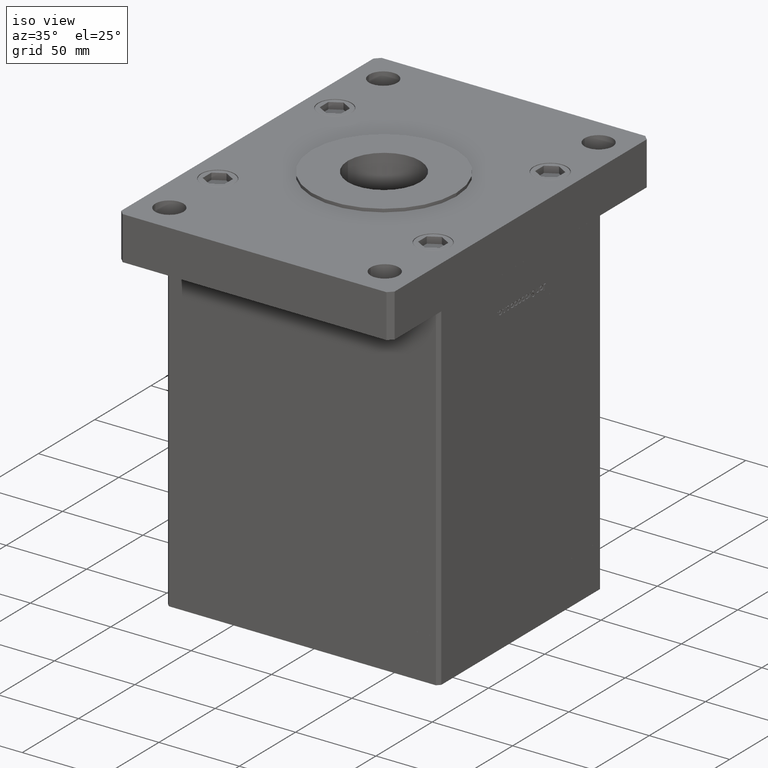
[diagram: clean part render]
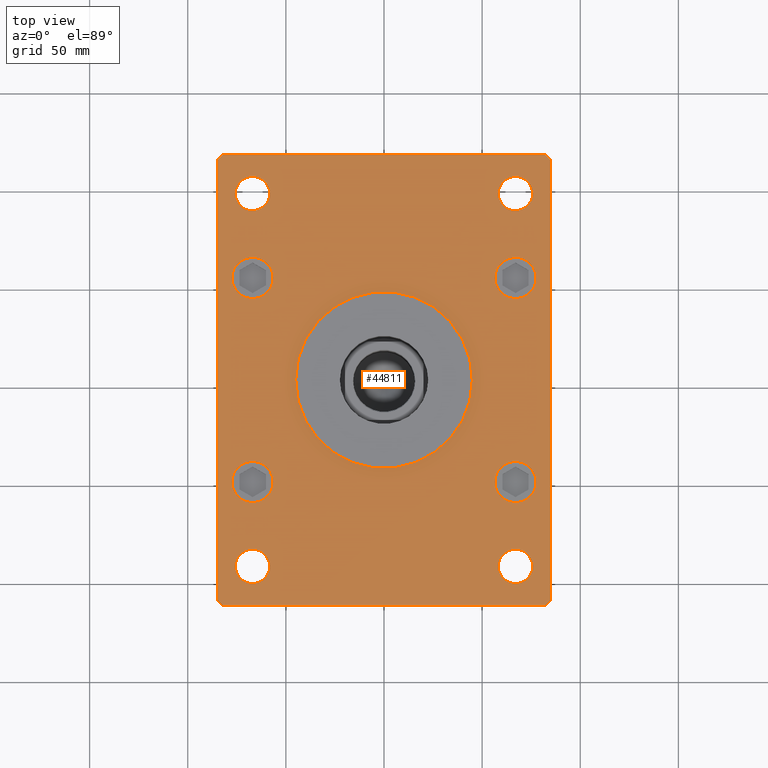
[diagram: tour spotlight — one face highlighted and labeled with its STEP entity id]
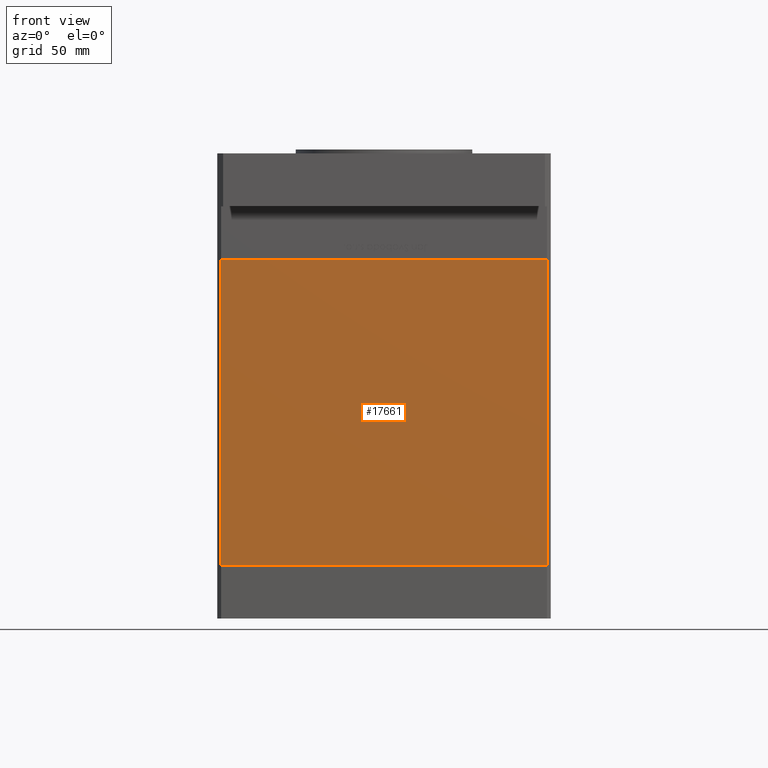
[diagram: tour spotlight — one face highlighted and labeled with its STEP entity id]
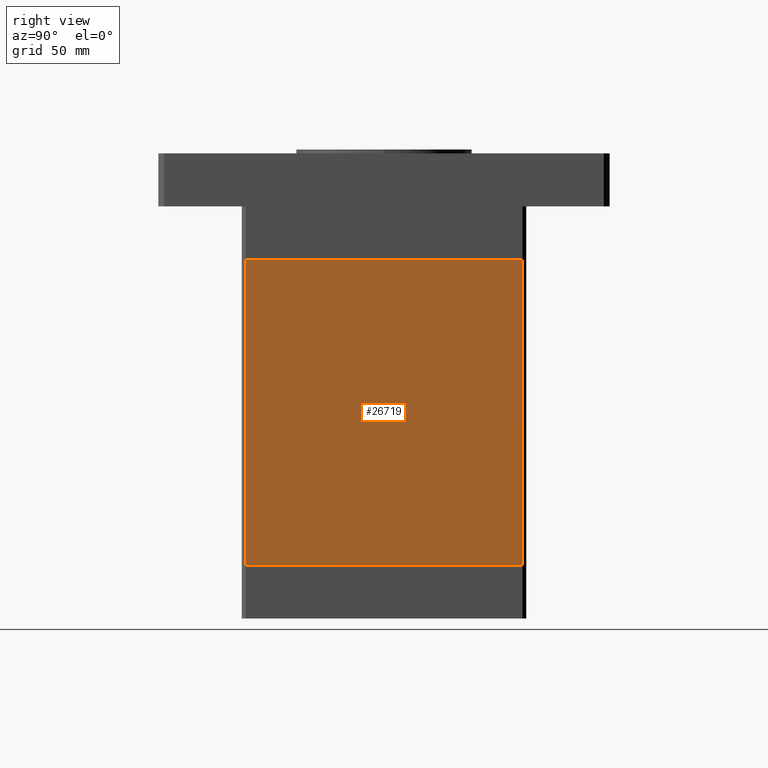
[diagram: tour spotlight — one face highlighted and labeled with its STEP entity id]
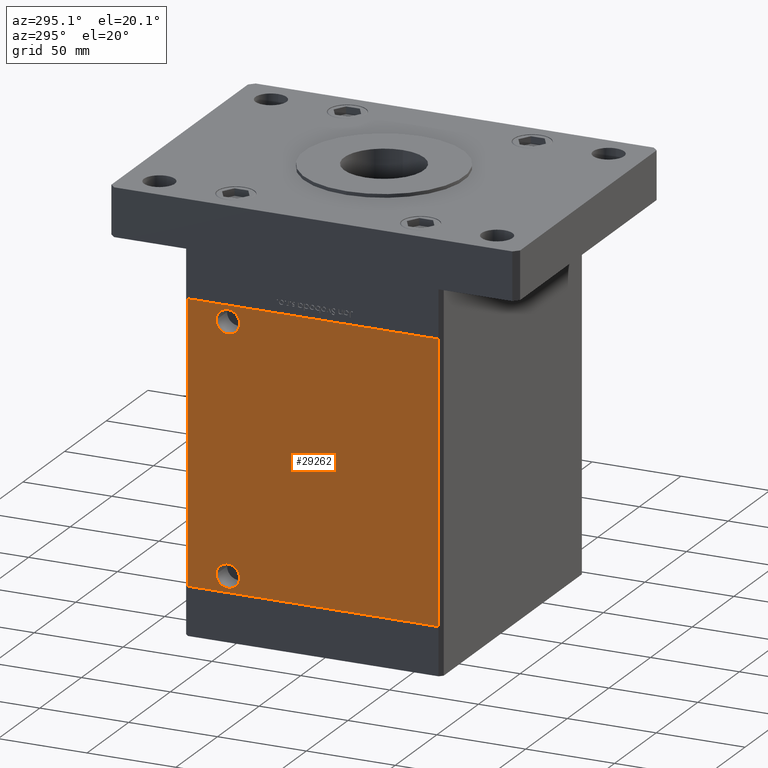
[diagram: tour spotlight — one face highlighted and labeled with its STEP entity id]
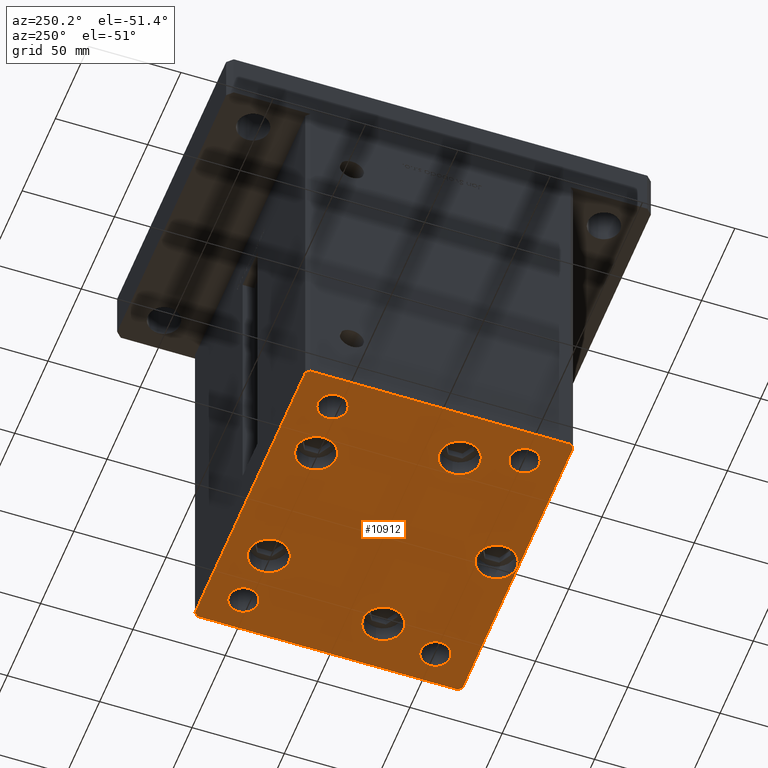
[diagram: tour spotlight — one face highlighted and labeled with its STEP entity id]
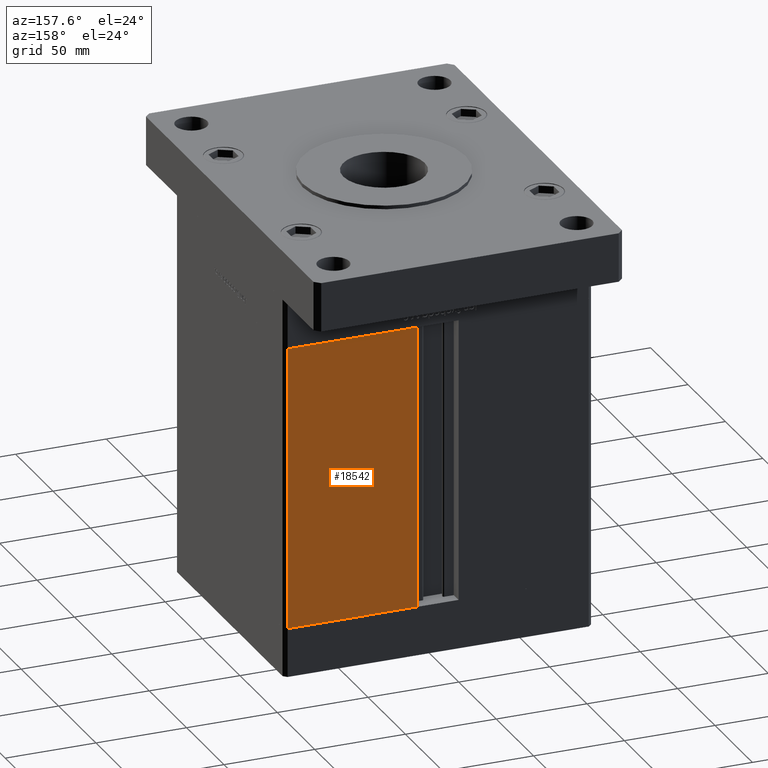
[diagram: tour spotlight — one face highlighted and labeled with its STEP entity id]
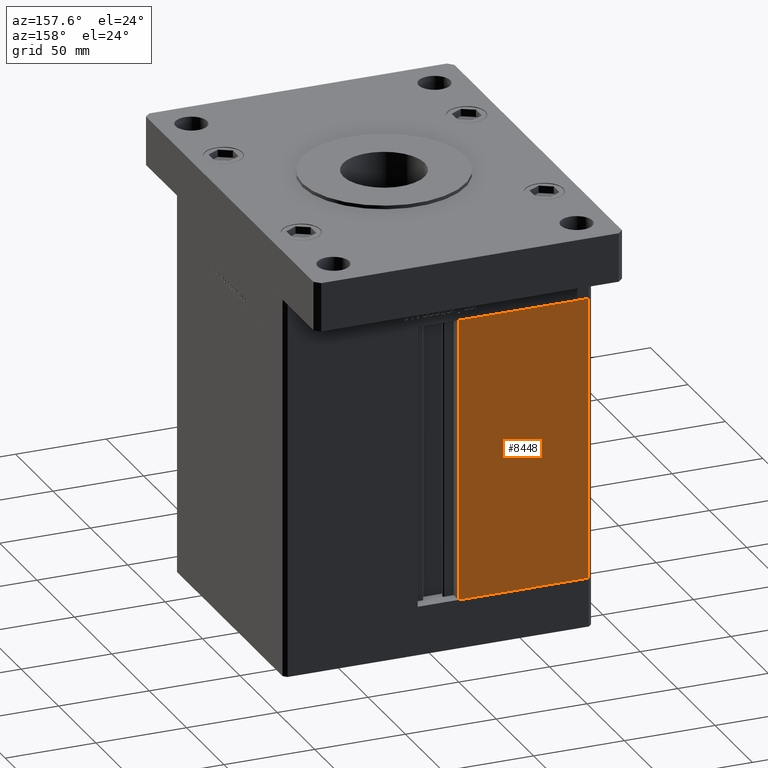
[diagram: tour spotlight — one face highlighted and labeled with its STEP entity id]
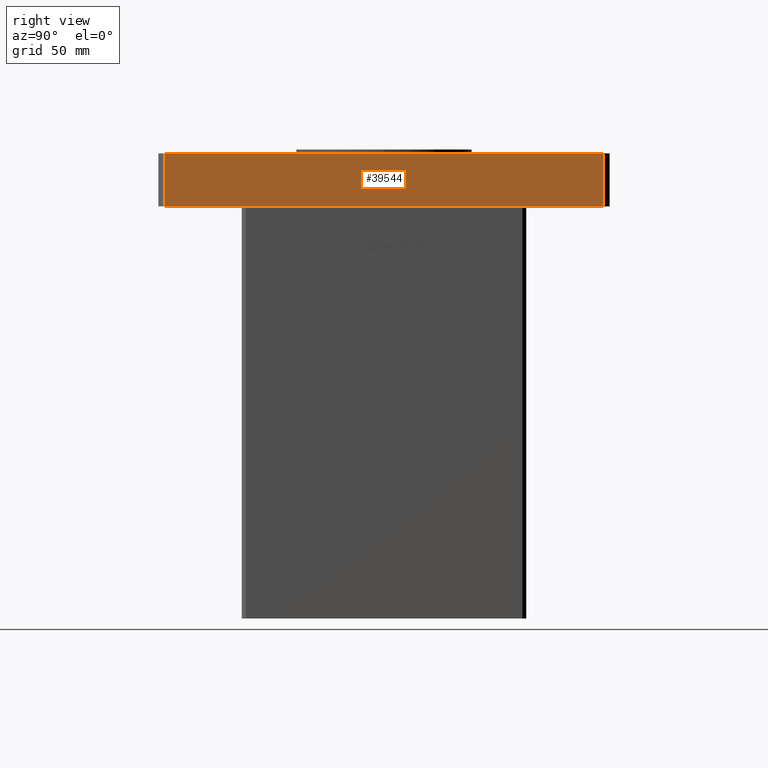
[diagram: tour spotlight — one face highlighted and labeled with its STEP entity id]
A machine part: a face-by-face anatomy tour. The part has 1310 B-rep faces; the first image is the clean iso view, then the 8 largest visible faces are spotlighted one at a time (largest first), each with its STEP entity span.

Face 1 — top view, entity #44811. In plain terms, the highlighted planar face has unit normal (0, 0, 1).
Definition (entity closure, byte-faithful):
#3 = EDGE_LOOP ( 'NONE', ( #27227, #43418 ) ) ;
#481 = CARTESIAN_POINT ( 'NONE',  ( -67.00000000000000000, 52.00000000000001421, 27.00000000000000000 ) ) ;
#560 = ORIENTED_EDGE ( 'NONE', *, *, #15808, .F. ) ;
#598 = EDGE_CURVE ( 'NONE', #36988, #15267, #13424, .T. ) ;
#970 = LINE ( 'NONE', #29659, #36622 ) ;
#1145 = AXIS2_PLACEMENT_3D ( 'NONE', #38149, #17015, #29198 ) ;
#1292 = DIRECTION ( 'NONE',  ( 1.000000000000000000, 0.000000000000000000, 0.000000000000000000 ) ) ;
#2353 = CIRCLE ( 'NONE', #23089, 10.49999999999999467 ) ;
#2567 = DIRECTION ( 'NONE',  ( 0.000000000000000000, 0.000000000000000000, 1.000000000000000000 ) ) ;
#2597 = AXIS2_PLACEMENT_3D ( 'NONE', #4977, #41264, #4173 ) ;
#3485 = CARTESIAN_POINT ( 'NONE',  ( 67.00000000000000000, 94.99999999999997158, 27.00000000000000000 ) ) ;
#3566 = EDGE_CURVE ( 'NONE', #45691, #9456, #21334, .T. ) ;
#4173 = DIRECTION ( 'NONE',  ( 1.000000000000000000, 0.000000000000000000, 0.000000000000000000 ) ) ;
#4230 = CIRCLE ( 'NONE', #46634, 8.750000000000007105 ) ;
#4827 = VERTEX_POINT ( 'NONE', #19678 ) ;
#4977 = CARTESIAN_POINT ( 'NONE',  ( -66.99999999999997158, -95.00000000000001421, 27.00000000000000000 ) ) ;
#5006 = CIRCLE ( 'NONE', #32668, 8.750000000000007105 ) ;
#5481 = CARTESIAN_POINT ( 'NONE',  ( 85.00000000000001421, -111.9999999999999005, 27.00000000000000000 ) ) ;
#5509 = DIRECTION ( 'NONE',  ( 0.000000000000000000, 0.000000000000000000, 1.000000000000000000 ) ) ;
#6061 = CARTESIAN_POINT ( 'NONE',  ( 56.50000000000002132, 52.00000000000000000, 27.00000000000000000 ) ) ;
#6322 = VERTEX_POINT ( 'NONE', #7584 ) ;
#6488 = EDGE_CURVE ( 'NONE', #22423, #13885, #11794, .T. ) ;
#6562 = DIRECTION ( 'NONE',  ( 0.000000000000000000, 0.000000000000000000, 1.000000000000000000 ) ) ;
#6618 = CARTESIAN_POINT ( 'NONE',  ( -45.00000000000000711, 0.000000000000000000, 27.00000000000000000 ) ) ;
#6692 = CARTESIAN_POINT ( 'NONE',  ( 66.99999999999997158, -95.00000000000001421, 27.00000000000000000 ) ) ;
#6950 = VERTEX_POINT ( 'NONE', #48295 ) ;
#7316 = EDGE_LOOP ( 'NONE', ( #39961, #25107 ) ) ;
#7343 = DIRECTION ( 'NONE',  ( 1.000000000000000000, 0.000000000000000000, 0.000000000000000000 ) ) ;
#7453 = CARTESIAN_POINT ( 'NONE',  ( -67.00000000000000000, 95.00000000000001421, 27.00000000000000000 ) ) ;
#7501 = VERTEX_POINT ( 'NONE', #22487 ) ;
#7584 = CARTESIAN_POINT ( 'NONE',  ( 77.50000000000001421, 52.00000000000000000, 27.00000000000000000 ) ) ;
#7906 = CIRCLE ( 'NONE', #27810, 10.50000000000000178 ) ;
#8383 = DIRECTION ( 'NONE',  ( 1.000000000000000000, 0.000000000000000000, 0.000000000000000000 ) ) ;
#8408 = CARTESIAN_POINT ( 'NONE',  ( 67.00000000000000000, 94.99999999999997158, 27.00000000000000000 ) ) ;
#8551 = CIRCLE ( 'NONE', #10313, 45.00000000000000711 ) ;
#8918 = DIRECTION ( 'NONE',  ( 1.000000000000000000, 0.000000000000000000, 0.000000000000000000 ) ) ;
#9374 = VERTEX_POINT ( 'NONE', #33827 ) ;
#9452 = DIRECTION ( 'NONE',  ( 0.000000000000000000, 0.000000000000000000, 1.000000000000000000 ) ) ;
#9456 = VERTEX_POINT ( 'NONE', #34904 ) ;
#10029 = EDGE_CURVE ( 'NONE', #31093, #13086, #5006, .T. ) ;
#10313 = AXIS2_PLACEMENT_3D ( 'NONE', #26125, #18541, #7343 ) ;
#10544 = AXIS2_PLACEMENT_3D ( 'NONE', #481, #37055, #12932 ) ;
#11225 = AXIS2_PLACEMENT_3D ( 'NONE', #15002, #2567, #27712 ) ;
#11514 = DIRECTION ( 'NONE',  ( 1.000000000000000000, 0.000000000000000000, -0.000000000000000000 ) ) ;
#11630 = ORIENTED_EDGE ( 'NONE', *, *, #46147, .T. ) ;
#11794 = CIRCLE ( 'NONE', #53284, 8.750000000000007105 ) ;
#12306 = AXIS2_PLACEMENT_3D ( 'NONE', #37613, #51140, #14028 ) ;
#12376 = CIRCLE ( 'NONE', #1145, 8.750000000000007105 ) ;
#12789 = CARTESIAN_POINT ( 'NONE',  ( -58.24999999999997158, -95.00000000000001421, 27.00000000000000000 ) ) ;
#12932 = DIRECTION ( 'NONE',  ( 1.000000000000000000, 0.000000000000000000, 0.000000000000000000 ) ) ;
#13086 = VERTEX_POINT ( 'NONE', #17646 ) ;
#13195 = CARTESIAN_POINT ( 'NONE',  ( -56.50000000000000000, 52.00000000000001421, 27.00000000000000000 ) ) ;
#13424 = CIRCLE ( 'NONE', #18647, 10.50000000000000178 ) ;
#13885 = VERTEX_POINT ( 'NONE', #28841 ) ;
#14028 = DIRECTION ( 'NONE',  ( 1.000000000000000000, 0.000000000000000000, 0.000000000000000000 ) ) ;
#14039 = CARTESIAN_POINT ( 'NONE',  ( -66.99999999999997158, -95.00000000000001421, 27.00000000000000000 ) ) ;
#14055 = EDGE_CURVE ( 'NONE', #9456, #45691, #8551, .T. ) ;
#14135 = CARTESIAN_POINT ( 'NONE',  ( -81.99999999999998579, -115.0000000000000142, 27.00000000000000000 ) ) ;
#14154 = CARTESIAN_POINT ( 'NONE',  ( -56.50000000000000000, -52.00000000000000000, 27.00000000000000000 ) ) ;
#14190 = ORIENTED_EDGE ( 'NONE', *, *, #29782, .F. ) ;
#14236 = EDGE_CURVE ( 'NONE', #26421, #9374, #50373, .T. ) ;
#14532 = EDGE_CURVE ( 'NONE', #38238, #42709, #4230, .T. ) ;
#15002 = CARTESIAN_POINT ( 'NONE',  ( 67.00000000000001421, -52.00000000000000000, 27.00000000000000000 ) ) ;
#15028 = CARTESIAN_POINT ( 'NONE',  ( 85.00000000000001421, 112.0000000000000142, 27.00000000000000000 ) ) ;
#15267 = VERTEX_POINT ( 'NONE', #39776 ) ;
#15374 = CARTESIAN_POINT ( 'NONE',  ( -84.99999999999998579, -112.0000000000000142, 27.00000000000000000 ) ) ;
#15429 = EDGE_LOOP ( 'NONE', ( #21263, #43968 ) ) ;
#15506 = AXIS2_PLACEMENT_3D ( 'NONE', #29286, #46625, #42299 ) ;
#15631 = ORIENTED_EDGE ( 'NONE', *, *, #28465, .F. ) ;
#15808 = EDGE_CURVE ( 'NONE', #31008, #31880, #34541, .T. ) ;
#15842 = DIRECTION ( 'NONE',  ( 1.000000000000000000, 0.000000000000000000, 0.000000000000000000 ) ) ;
#15908 = DIRECTION ( 'NONE',  ( 0.7071067811865474617, -0.7071067811865474617, 0.000000000000000000 ) ) ;
#16553 = VERTEX_POINT ( 'NONE', #47968 ) ;
#16663 = CIRCLE ( 'NONE', #25286, 8.750000000000007105 ) ;
#17015 = DIRECTION ( 'NONE',  ( 0.000000000000000000, 0.000000000000000000, 1.000000000000000000 ) ) ;
#17045 = EDGE_CURVE ( 'NONE', #7501, #16553, #34577, .T. ) ;
#17409 = CARTESIAN_POINT ( 'NONE',  ( 58.24999999999996447, -95.00000000000001421, 27.00000000000000000 ) ) ;
#17413 = ORIENTED_EDGE ( 'NONE', *, *, #49798, .F. ) ;
#17646 = CARTESIAN_POINT ( 'NONE',  ( 75.74999999999998579, -95.00000000000001421, 27.00000000000000000 ) ) ;
#18406 = EDGE_CURVE ( 'NONE', #31880, #31008, #7906, .T. ) ;
#18541 = DIRECTION ( 'NONE',  ( 0.000000000000000000, 0.000000000000000000, 1.000000000000000000 ) ) ;
#18626 = ORIENTED_EDGE ( 'NONE', *, *, #10029, .F. ) ;
#18647 = AXIS2_PLACEMENT_3D ( 'NONE', #27152, #5509, #38556 ) ;
#19088 = CARTESIAN_POINT ( 'NONE',  ( -77.50000000000000000, -52.00000000000000000, 27.00000000000000000 ) ) ;
#19131 = DIRECTION ( 'NONE',  ( 0.000000000000000000, 0.000000000000000000, 1.000000000000000000 ) ) ;
#19227 = AXIS2_PLACEMENT_3D ( 'NONE', #14039, #9452, #8918 ) ;
#19653 = DIRECTION ( 'NONE',  ( 1.000000000000000000, 0.000000000000000000, 0.000000000000000000 ) ) ;
#19678 = CARTESIAN_POINT ( 'NONE',  ( 85.00000000000001421, -111.9999999999999005, 27.00000000000000000 ) ) ;
#19712 = ORIENTED_EDGE ( 'NONE', *, *, #598, .F. ) ;
#19728 = DIRECTION ( 'NONE',  ( 0.000000000000000000, 0.000000000000000000, 1.000000000000000000 ) ) ;
#19772 = CARTESIAN_POINT ( 'NONE',  ( 85.00000000000001421, 112.0000000000000142, 27.00000000000000000 ) ) ;
#19901 = FACE_BOUND ( 'NONE', #7316, .T. ) ;
#20168 = PLANE ( 'NONE',  #51546 ) ;
#20704 = DIRECTION ( 'NONE',  ( 0.000000000000000000, 0.000000000000000000, 1.000000000000000000 ) ) ;
#20783 = EDGE_CURVE ( 'NONE', #4827, #31746, #33648, .T. ) ;
#21104 = DIRECTION ( 'NONE',  ( 1.239088197126290570E-16, -1.000000000000000000, 0.000000000000000000 ) ) ;
#21263 = ORIENTED_EDGE ( 'NONE', *, *, #22674, .F. ) ;
#21277 = CARTESIAN_POINT ( 'NONE',  ( 58.24999999999998579, 94.99999999999997158, 27.00000000000000000 ) ) ;
#21334 = CIRCLE ( 'NONE', #44698, 45.00000000000000711 ) ;
#21522 = DIRECTION ( 'NONE',  ( -1.000000000000000000, -1.692413147294444984E-16, 0.000000000000000000 ) ) ;
#21748 = EDGE_CURVE ( 'NONE', #50481, #43063, #44785, .T. ) ;
#21875 = VERTEX_POINT ( 'NONE', #48192 ) ;
#22423 = VERTEX_POINT ( 'NONE', #51065 ) ;
#22473 = ORIENTED_EDGE ( 'NONE', *, *, #20783, .T. ) ;
#22487 = CARTESIAN_POINT ( 'NONE',  ( 56.50000000000002132, -52.00000000000000000, 27.00000000000000000 ) ) ;
#22674 = EDGE_CURVE ( 'NONE', #21875, #39953, #47554, .T. ) ;
#23067 = DIRECTION ( 'NONE',  ( 1.000000000000000000, 0.000000000000000000, 0.000000000000000000 ) ) ;
#23089 = AXIS2_PLACEMENT_3D ( 'NONE', #25846, #20704, #33707 ) ;
#23331 = ORIENTED_EDGE ( 'NONE', *, *, #21748, .T. ) ;
#23525 = CARTESIAN_POINT ( 'NONE',  ( 82.00000000000002842, -114.9999999999999147, 27.00000000000000000 ) ) ;
#23841 = LINE ( 'NONE', #33040, #44314 ) ;
#23901 = EDGE_LOOP ( 'NONE', ( #27406, #42272 ) ) ;
#24197 = CARTESIAN_POINT ( 'NONE',  ( -81.99999999999998579, -115.0000000000000142, 27.00000000000000000 ) ) ;
#24211 = ORIENTED_EDGE ( 'NONE', *, *, #14236, .T. ) ;
#24343 = EDGE_LOOP ( 'NONE', ( #31955, #44406 ) ) ;
#24983 = DIRECTION ( 'NONE',  ( 0.000000000000000000, 1.000000000000000000, 0.000000000000000000 ) ) ;
#25107 = ORIENTED_EDGE ( 'NONE', *, *, #6488, .F. ) ;
#25193 = ORIENTED_EDGE ( 'NONE', *, *, #34306, .T. ) ;
#25286 = AXIS2_PLACEMENT_3D ( 'NONE', #8408, #40648, #49033 ) ;
#25342 = EDGE_CURVE ( 'NONE', #13885, #22423, #38965, .T. ) ;
#25449 = CARTESIAN_POINT ( 'NONE',  ( -85.00000000000001421, 112.0000000000000000, 27.00000000000000000 ) ) ;
#25846 = CARTESIAN_POINT ( 'NONE',  ( 67.00000000000001421, -52.00000000000000000, 27.00000000000000000 ) ) ;
#26110 = CIRCLE ( 'NONE', #10544, 10.50000000000000178 ) ;
#26125 = CARTESIAN_POINT ( 'NONE',  ( 0.000000000000000000, 0.000000000000000000, 27.00000000000000000 ) ) ;
#26402 = CARTESIAN_POINT ( 'NONE',  ( 75.75000000000001421, 94.99999999999997158, 27.00000000000000000 ) ) ;
#26421 = VERTEX_POINT ( 'NONE', #44521 ) ;
#27129 = CARTESIAN_POINT ( 'NONE',  ( 0.000000000000000000, 0.000000000000000000, 27.00000000000000000 ) ) ;
#27152 = CARTESIAN_POINT ( 'NONE',  ( -67.00000000000000000, 52.00000000000001421, 27.00000000000000000 ) ) ;
#27227 = ORIENTED_EDGE ( 'NONE', *, *, #35267, .F. ) ;
#27406 = ORIENTED_EDGE ( 'NONE', *, *, #3566, .F. ) ;
#27559 = LINE ( 'NONE', #15374, #49644 ) ;
#27608 = VECTOR ( 'NONE', #24983, 1000.000000000000000 ) ;
#27712 = DIRECTION ( 'NONE',  ( 1.000000000000000000, 0.000000000000000000, 0.000000000000000000 ) ) ;
#27761 = FACE_BOUND ( 'NONE', #49807, .T. ) ;
#27810 = AXIS2_PLACEMENT_3D ( 'NONE', #32279, #28474, #48800 ) ;
#28289 = FACE_BOUND ( 'NONE', #47667, .T. ) ;
#28465 = EDGE_CURVE ( 'NONE', #15267, #36988, #26110, .T. ) ;
#28474 = DIRECTION ( 'NONE',  ( 0.000000000000000000, 0.000000000000000000, 1.000000000000000000 ) ) ;
#28530 = ORIENTED_EDGE ( 'NONE', *, *, #32577, .F. ) ;
#28841 = CARTESIAN_POINT ( 'NONE',  ( -75.75000000000001421, 95.00000000000001421, 27.00000000000000000 ) ) ;
#29198 = DIRECTION ( 'NONE',  ( 1.000000000000000000, 0.000000000000000000, 0.000000000000000000 ) ) ;
#29286 = CARTESIAN_POINT ( 'NONE',  ( -67.00000000000000000, -52.00000000000000000, 27.00000000000000000 ) ) ;
#29659 = CARTESIAN_POINT ( 'NONE',  ( 82.00000000000004263, 115.0000000000000284, 27.00000000000000000 ) ) ;
#29782 = EDGE_CURVE ( 'NONE', #32813, #6322, #47775, .T. ) ;
#30438 = EDGE_CURVE ( 'NONE', #39953, #21875, #42586, .T. ) ;
#31008 = VERTEX_POINT ( 'NONE', #14154 ) ;
#31093 = VERTEX_POINT ( 'NONE', #17409 ) ;
#31653 = ORIENTED_EDGE ( 'NONE', *, *, #18406, .F. ) ;
#31746 = VERTEX_POINT ( 'NONE', #15028 ) ;
#31880 = VERTEX_POINT ( 'NONE', #19088 ) ;
#31955 = ORIENTED_EDGE ( 'NONE', *, *, #17045, .F. ) ;
#32093 = FACE_BOUND ( 'NONE', #15429, .T. ) ;
#32279 = CARTESIAN_POINT ( 'NONE',  ( -67.00000000000000000, -52.00000000000000000, 27.00000000000000000 ) ) ;
#32358 = FACE_BOUND ( 'NONE', #32515, .T. ) ;
#32515 = EDGE_LOOP ( 'NONE', ( #31653, #560 ) ) ;
#32577 = EDGE_CURVE ( 'NONE', #13086, #31093, #12376, .T. ) ;
#32668 = AXIS2_PLACEMENT_3D ( 'NONE', #6692, #19131, #19653 ) ;
#32813 = VERTEX_POINT ( 'NONE', #6061 ) ;
#33040 = CARTESIAN_POINT ( 'NONE',  ( -82.00000000000002842, 115.0000000000000000, 27.00000000000000000 ) ) ;
#33400 = VECTOR ( 'NONE', #48234, 1000.000000000000000 ) ;
#33559 = ORIENTED_EDGE ( 'NONE', *, *, #47356, .T. ) ;
#33648 = LINE ( 'NONE', #5481, #27608 ) ;
#33707 = DIRECTION ( 'NONE',  ( 1.000000000000000000, 0.000000000000000000, 0.000000000000000000 ) ) ;
#33827 = CARTESIAN_POINT ( 'NONE',  ( -84.99999999999998579, -112.0000000000000142, 27.00000000000000000 ) ) ;
#34306 = EDGE_CURVE ( 'NONE', #48521, #26421, #23841, .T. ) ;
#34541 = CIRCLE ( 'NONE', #15506, 10.50000000000000178 ) ;
#34577 = CIRCLE ( 'NONE', #11225, 10.49999999999999467 ) ;
#34904 = CARTESIAN_POINT ( 'NONE',  ( 45.00000000000000711, 5.510910596163090344E-15, 27.00000000000000000 ) ) ;
#35267 = EDGE_CURVE ( 'NONE', #42709, #38238, #16663, .T. ) ;
#35277 = AXIS2_PLACEMENT_3D ( 'NONE', #48447, #19728, #36799 ) ;
#36516 = DIRECTION ( 'NONE',  ( 0.000000000000000000, 0.000000000000000000, 1.000000000000000000 ) ) ;
#36622 = VECTOR ( 'NONE', #21522, 1000.000000000000000 ) ;
#36799 = DIRECTION ( 'NONE',  ( 1.000000000000000000, 0.000000000000000000, 0.000000000000000000 ) ) ;
#36988 = VERTEX_POINT ( 'NONE', #13195 ) ;
#37055 = DIRECTION ( 'NONE',  ( 0.000000000000000000, 0.000000000000000000, 1.000000000000000000 ) ) ;
#37091 = VECTOR ( 'NONE', #21104, 1000.000000000000000 ) ;
#37613 = CARTESIAN_POINT ( 'NONE',  ( 67.00000000000001421, 52.00000000000000000, 27.00000000000000000 ) ) ;
#37903 = CARTESIAN_POINT ( 'NONE',  ( -67.00000000000000000, 95.00000000000001421, 27.00000000000000000 ) ) ;
#38148 = EDGE_CURVE ( 'NONE', #6950, #48521, #970, .T. ) ;
#38149 = CARTESIAN_POINT ( 'NONE',  ( 66.99999999999997158, -95.00000000000001421, 27.00000000000000000 ) ) ;
#38238 = VERTEX_POINT ( 'NONE', #26402 ) ;
#38556 = DIRECTION ( 'NONE',  ( 1.000000000000000000, 0.000000000000000000, 0.000000000000000000 ) ) ;
#38965 = CIRCLE ( 'NONE', #52785, 8.750000000000007105 ) ;
#39260 = EDGE_CURVE ( 'NONE', #9374, #50481, #27559, .T. ) ;
#39523 = VECTOR ( 'NONE', #39796, 1000.000000000000114 ) ;
#39776 = CARTESIAN_POINT ( 'NONE',  ( -77.50000000000000000, 52.00000000000001421, 27.00000000000000000 ) ) ;
#39796 = DIRECTION ( 'NONE',  ( 0.7071067811865459074, 0.7071067811865491270, 0.000000000000000000 ) ) ;
#39953 = VERTEX_POINT ( 'NONE', #12789 ) ;
#39961 = ORIENTED_EDGE ( 'NONE', *, *, #25342, .F. ) ;
#40648 = DIRECTION ( 'NONE',  ( 0.000000000000000000, 0.000000000000000000, 1.000000000000000000 ) ) ;
#40725 = DIRECTION ( 'NONE',  ( 1.000000000000000000, 6.769652589177783879E-16, 0.000000000000000000 ) ) ;
#40901 = DIRECTION ( 'NONE',  ( -0.7071067811865459074, -0.7071067811865491270, 0.000000000000000000 ) ) ;
#41264 = DIRECTION ( 'NONE',  ( 0.000000000000000000, 0.000000000000000000, 1.000000000000000000 ) ) ;
#41552 = CARTESIAN_POINT ( 'NONE',  ( 82.00000000000002842, -114.9999999999999147, 27.00000000000000000 ) ) ;
#41601 = EDGE_LOOP ( 'NONE', ( #23331, #33559, #22473, #11630, #51422, #25193, #24211, #49224 ) ) ;
#42272 = ORIENTED_EDGE ( 'NONE', *, *, #14055, .F. ) ;
#42299 = DIRECTION ( 'NONE',  ( 1.000000000000000000, 0.000000000000000000, 0.000000000000000000 ) ) ;
#42586 = CIRCLE ( 'NONE', #19227, 8.750000000000007105 ) ;
#42709 = VERTEX_POINT ( 'NONE', #21277 ) ;
#43063 = VERTEX_POINT ( 'NONE', #41552 ) ;
#43418 = ORIENTED_EDGE ( 'NONE', *, *, #14532, .F. ) ;
#43968 = ORIENTED_EDGE ( 'NONE', *, *, #30438, .F. ) ;
#44293 = FACE_OUTER_BOUND ( 'NONE', #41601, .T. ) ;
#44314 = VECTOR ( 'NONE', #40901, 1000.000000000000114 ) ;
#44406 = ORIENTED_EDGE ( 'NONE', *, *, #47583, .F. ) ;
#44521 = CARTESIAN_POINT ( 'NONE',  ( -85.00000000000001421, 112.0000000000000000, 27.00000000000000000 ) ) ;
#44698 = AXIS2_PLACEMENT_3D ( 'NONE', #27129, #6562, #23067 ) ;
#44785 = LINE ( 'NONE', #24197, #44937 ) ;
#44811 = ADVANCED_FACE ( 'NONE', ( #48356, #27761, #52416, #19901, #32093, #44293, #53482, #32358, #52682, #28289 ), #20168, .T. ) ;
#44937 = VECTOR ( 'NONE', #40725, 1000.000000000000000 ) ;
#45351 = DIRECTION ( 'NONE',  ( 0.000000000000000000, 0.000000000000000000, 1.000000000000000000 ) ) ;
#45691 = VERTEX_POINT ( 'NONE', #6618 ) ;
#46019 = DIRECTION ( 'NONE',  ( 0.000000000000000000, 0.000000000000000000, 1.000000000000000000 ) ) ;
#46147 = EDGE_CURVE ( 'NONE', #31746, #6950, #53091, .T. ) ;
#46625 = DIRECTION ( 'NONE',  ( 0.000000000000000000, 0.000000000000000000, 1.000000000000000000 ) ) ;
#46634 = AXIS2_PLACEMENT_3D ( 'NONE', #3485, #36516, #1292 ) ;
#47356 = EDGE_CURVE ( 'NONE', #43063, #4827, #52504, .T. ) ;
#47554 = CIRCLE ( 'NONE', #2597, 8.750000000000007105 ) ;
#47583 = EDGE_CURVE ( 'NONE', #16553, #7501, #2353, .T. ) ;
#47667 = EDGE_LOOP ( 'NONE', ( #18626, #28530 ) ) ;
#47775 = CIRCLE ( 'NONE', #12306, 10.49999999999999467 ) ;
#47968 = CARTESIAN_POINT ( 'NONE',  ( 77.50000000000001421, -52.00000000000000000, 27.00000000000000000 ) ) ;
#48192 = CARTESIAN_POINT ( 'NONE',  ( -75.74999999999998579, -95.00000000000001421, 27.00000000000000000 ) ) ;
#48234 = DIRECTION ( 'NONE',  ( -0.7071067811865426878, 0.7071067811865524577, 0.000000000000000000 ) ) ;
#48295 = CARTESIAN_POINT ( 'NONE',  ( 82.00000000000004263, 115.0000000000000284, 27.00000000000000000 ) ) ;
#48356 = FACE_BOUND ( 'NONE', #23901, .T. ) ;
#48447 = CARTESIAN_POINT ( 'NONE',  ( 67.00000000000001421, 52.00000000000000000, 27.00000000000000000 ) ) ;
#48521 = VERTEX_POINT ( 'NONE', #53437 ) ;
#48619 = CARTESIAN_POINT ( 'NONE',  ( 0.000000000000000000, 0.000000000000000000, 27.00000000000000000 ) ) ;
#48800 = DIRECTION ( 'NONE',  ( 1.000000000000000000, 0.000000000000000000, 0.000000000000000000 ) ) ;
#49033 = DIRECTION ( 'NONE',  ( 1.000000000000000000, 0.000000000000000000, 0.000000000000000000 ) ) ;
#49089 = CIRCLE ( 'NONE', #35277, 10.49999999999999467 ) ;
#49141 = DIRECTION ( 'NONE',  ( 0.000000000000000000, 0.000000000000000000, 1.000000000000000000 ) ) ;
#49224 = ORIENTED_EDGE ( 'NONE', *, *, #39260, .T. ) ;
#49644 = VECTOR ( 'NONE', #15908, 1000.000000000000114 ) ;
#49798 = EDGE_CURVE ( 'NONE', #6322, #32813, #49089, .T. ) ;
#49807 = EDGE_LOOP ( 'NONE', ( #15631, #19712 ) ) ;
#50373 = LINE ( 'NONE', #25449, #37091 ) ;
#50481 = VERTEX_POINT ( 'NONE', #14135 ) ;
#51065 = CARTESIAN_POINT ( 'NONE',  ( -58.24999999999999289, 95.00000000000001421, 27.00000000000000000 ) ) ;
#51140 = DIRECTION ( 'NONE',  ( 0.000000000000000000, 0.000000000000000000, 1.000000000000000000 ) ) ;
#51422 = ORIENTED_EDGE ( 'NONE', *, *, #38148, .T. ) ;
#51546 = AXIS2_PLACEMENT_3D ( 'NONE', #48619, #49141, #11514 ) ;
#51693 = EDGE_LOOP ( 'NONE', ( #14190, #17413 ) ) ;
#52416 = FACE_BOUND ( 'NONE', #24343, .T. ) ;
#52504 = LINE ( 'NONE', #23525, #39523 ) ;
#52682 = FACE_BOUND ( 'NONE', #51693, .T. ) ;
#52785 = AXIS2_PLACEMENT_3D ( 'NONE', #7453, #45351, #15842 ) ;
#53091 = LINE ( 'NONE', #19772, #33400 ) ;
#53284 = AXIS2_PLACEMENT_3D ( 'NONE', #37903, #46019, #8383 ) ;
#53437 = CARTESIAN_POINT ( 'NONE',  ( -82.00000000000002842, 115.0000000000000000, 27.00000000000000000 ) ) ;
#53482 = FACE_BOUND ( 'NONE', #3, .T. ) ;

Face 2 — front view, entity #17661. In plain terms, the highlighted planar face has unit normal (0, 1, 0).
Definition (entity closure, byte-faithful):
#1624 = VECTOR ( 'NONE', #37772, 1000.000000000000000 ) ;
#2164 = DIRECTION ( 'NONE',  ( 0.000000000000000000, 1.000000000000000000, 0.000000000000000000 ) ) ;
#3251 = ORIENTED_EDGE ( 'NONE', *, *, #26658, .F. ) ;
#4229 = VERTEX_POINT ( 'NONE', #48384 ) ;
#6753 = DIRECTION ( 'NONE',  ( 0.000000000000000000, -0.000000000000000000, 1.000000000000000000 ) ) ;
#10888 = ORIENTED_EDGE ( 'NONE', *, *, #21241, .T. ) ;
#10913 = LINE ( 'NONE', #31752, #29254 ) ;
#12392 = EDGE_CURVE ( 'NONE', #4229, #32074, #10913, .T. ) ;
#14411 = DIRECTION ( 'NONE',  ( 1.000000000000000000, 0.000000000000000000, 0.000000000000000000 ) ) ;
#16437 = EDGE_LOOP ( 'NONE', ( #25000, #28457, #3251, #10888 ) ) ;
#17661 = ADVANCED_FACE ( 'NONE', ( #39263 ), #23519, .F. ) ;
#19195 = CARTESIAN_POINT ( 'NONE',  ( -82.99999999999998579, -72.50000000000002842, 156.0000000000000000 ) ) ;
#20207 = EDGE_CURVE ( 'NONE', #36478, #32074, #26105, .T. ) ;
#21241 = EDGE_CURVE ( 'NONE', #52588, #4229, #33788, .T. ) ;
#21745 = CARTESIAN_POINT ( 'NONE',  ( 82.99999999999998579, -72.50000000000002842, 0.000000000000000000 ) ) ;
#23097 = DIRECTION ( 'NONE',  ( 1.000000000000000000, 0.000000000000000000, 0.000000000000000000 ) ) ;
#23519 = PLANE ( 'NONE',  #41662 ) ;
#24854 = CARTESIAN_POINT ( 'NONE',  ( -82.99999999999998579, -72.50000000000002842, 156.0000000000000000 ) ) ;
#25000 = ORIENTED_EDGE ( 'NONE', *, *, #12392, .T. ) ;
#26105 = LINE ( 'NONE', #46424, #1624 ) ;
#26658 = EDGE_CURVE ( 'NONE', #52588, #36478, #51516, .T. ) ;
#26927 = VECTOR ( 'NONE', #14411, 1000.000000000000000 ) ;
#28457 = ORIENTED_EDGE ( 'NONE', *, *, #20207, .F. ) ;
#28910 = DIRECTION ( 'NONE',  ( -0.000000000000000000, -0.000000000000000000, -1.000000000000000000 ) ) ;
#29254 = VECTOR ( 'NONE', #23097, 1000.000000000000000 ) ;
#31752 = CARTESIAN_POINT ( 'NONE',  ( -82.99999999999998579, -72.50000000000002842, 0.000000000000000000 ) ) ;
#32066 = CARTESIAN_POINT ( 'NONE',  ( -82.99999999999998579, -72.50000000000002842, 156.0000000000000000 ) ) ;
#32074 = VERTEX_POINT ( 'NONE', #21745 ) ;
#33788 = LINE ( 'NONE', #24854, #43173 ) ;
#36478 = VERTEX_POINT ( 'NONE', #51392 ) ;
#37772 = DIRECTION ( 'NONE',  ( -0.000000000000000000, -0.000000000000000000, -1.000000000000000000 ) ) ;
#39263 = FACE_OUTER_BOUND ( 'NONE', #16437, .T. ) ;
#41662 = AXIS2_PLACEMENT_3D ( 'NONE', #19195, #2164, #6753 ) ;
#42596 = CARTESIAN_POINT ( 'NONE',  ( -82.99999999999998579, -72.50000000000002842, 156.0000000000000000 ) ) ;
#43173 = VECTOR ( 'NONE', #28910, 1000.000000000000000 ) ;
#46424 = CARTESIAN_POINT ( 'NONE',  ( 82.99999999999998579, -72.50000000000002842, 156.0000000000000000 ) ) ;
#48384 = CARTESIAN_POINT ( 'NONE',  ( -82.99999999999998579, -72.50000000000002842, 0.000000000000000000 ) ) ;
#51392 = CARTESIAN_POINT ( 'NONE',  ( 82.99999999999998579, -72.50000000000002842, 156.0000000000000000 ) ) ;
#51516 = LINE ( 'NONE', #42596, #26927 ) ;
#52588 = VERTEX_POINT ( 'NONE', #32066 ) ;

Face 3 — right view, entity #26719. In plain terms, the highlighted planar face has unit normal (1, -0, 0).
Definition (entity closure, byte-faithful):
#1259 = VERTEX_POINT ( 'NONE', #17819 ) ;
#1506 = VECTOR ( 'NONE', #15762, 1000.000000000000000 ) ;
#3647 = EDGE_LOOP ( 'NONE', ( #52003, #51590, #11746, #43546 ) ) ;
#5251 = EDGE_CURVE ( 'NONE', #1259, #43183, #14978, .T. ) ;
#5431 = DIRECTION ( 'NONE',  ( -0.000000000000000000, -0.000000000000000000, -1.000000000000000000 ) ) ;
#7123 = CARTESIAN_POINT ( 'NONE',  ( 85.00000000000001421, 70.49999999999998579, 156.0000000000000000 ) ) ;
#7253 = CARTESIAN_POINT ( 'NONE',  ( 84.99999999999998579, -70.50000000000001421, 0.000000000000000000 ) ) ;
#10665 = CARTESIAN_POINT ( 'NONE',  ( 84.99999999999998579, -70.50000000000001421, 156.0000000000000000 ) ) ;
#11746 = ORIENTED_EDGE ( 'NONE', *, *, #5251, .T. ) ;
#14978 = LINE ( 'NONE', #7123, #1506 ) ;
#15762 = DIRECTION ( 'NONE',  ( -1.968480540115525664E-16, -1.000000000000000000, 0.000000000000000000 ) ) ;
#16271 = CARTESIAN_POINT ( 'NONE',  ( 85.00000000000001421, 70.49999999999998579, 0.000000000000000000 ) ) ;
#17819 = CARTESIAN_POINT ( 'NONE',  ( 85.00000000000001421, 70.49999999999998579, 156.0000000000000000 ) ) ;
#19002 = DIRECTION ( 'NONE',  ( 1.000000000000000000, -1.968480540115525910E-16, 0.000000000000000000 ) ) ;
#20120 = DIRECTION ( 'NONE',  ( -0.000000000000000000, -0.000000000000000000, -1.000000000000000000 ) ) ;
#24398 = LINE ( 'NONE', #16271, #49455 ) ;
#24713 = LINE ( 'NONE', #33114, #31518 ) ;
#26272 = LINE ( 'NONE', #38480, #30444 ) ;
#26719 = ADVANCED_FACE ( 'NONE', ( #36062 ), #31989, .T. ) ;
#28698 = EDGE_CURVE ( 'NONE', #32211, #42546, #24398, .T. ) ;
#28759 = EDGE_CURVE ( 'NONE', #1259, #32211, #26272, .T. ) ;
#30444 = VECTOR ( 'NONE', #5431, 1000.000000000000000 ) ;
#31518 = VECTOR ( 'NONE', #20120, 1000.000000000000000 ) ;
#31989 = PLANE ( 'NONE',  #39926 ) ;
#32211 = VERTEX_POINT ( 'NONE', #36873 ) ;
#33114 = CARTESIAN_POINT ( 'NONE',  ( 84.99999999999998579, -70.50000000000001421, 156.0000000000000000 ) ) ;
#36062 = FACE_OUTER_BOUND ( 'NONE', #3647, .T. ) ;
#36873 = CARTESIAN_POINT ( 'NONE',  ( 85.00000000000001421, 70.49999999999998579, 0.000000000000000000 ) ) ;
#38480 = CARTESIAN_POINT ( 'NONE',  ( 85.00000000000001421, 70.49999999999998579, 156.0000000000000000 ) ) ;
#39926 = AXIS2_PLACEMENT_3D ( 'NONE', #40391, #19002, #48512 ) ;
#40391 = CARTESIAN_POINT ( 'NONE',  ( 85.00000000000001421, 70.49999999999998579, 156.0000000000000000 ) ) ;
#40698 = EDGE_CURVE ( 'NONE', #43183, #42546, #24713, .T. ) ;
#42546 = VERTEX_POINT ( 'NONE', #7253 ) ;
#43183 = VERTEX_POINT ( 'NONE', #10665 ) ;
#43546 = ORIENTED_EDGE ( 'NONE', *, *, #40698, .T. ) ;
#48512 = DIRECTION ( 'NONE',  ( 1.968480540115525910E-16, 1.000000000000000000, 0.000000000000000000 ) ) ;
#49455 = VECTOR ( 'NONE', #50929, 1000.000000000000000 ) ;
#50929 = DIRECTION ( 'NONE',  ( -1.968480540115525664E-16, -1.000000000000000000, 0.000000000000000000 ) ) ;
#51590 = ORIENTED_EDGE ( 'NONE', *, *, #28759, .F. ) ;
#52003 = ORIENTED_EDGE ( 'NONE', *, *, #28698, .F. ) ;

Face 4 — auxiliary view, entity #29262. In plain terms, the highlighted planar face has unit normal (1, 0, 0).
Definition (entity closure, byte-faithful):
#1409 = CARTESIAN_POINT ( 'NONE',  ( -85.00000000000001421, 47.99999999999997868, 147.0000000000000000 ) ) ;
#3603 = CARTESIAN_POINT ( 'NONE',  ( -85.00000000000001421, 70.49999999999998579, 0.000000000000000000 ) ) ;
#4177 = DIRECTION ( 'NONE',  ( -1.968480540115525910E-16, 1.000000000000000000, 0.000000000000000000 ) ) ;
#4504 = AXIS2_PLACEMENT_3D ( 'NONE', #33676, #41268, #4177 ) ;
#4873 = VECTOR ( 'NONE', #9946, 1000.000000000000000 ) ;
#5075 = CARTESIAN_POINT ( 'NONE',  ( -85.00000000000001421, 70.49999999999998579, 156.0000000000000000 ) ) ;
#5908 = CARTESIAN_POINT ( 'NONE',  ( -84.99999999999998579, -70.50000000000001421, 0.000000000000000000 ) ) ;
#6196 = VERTEX_POINT ( 'NONE', #20624 ) ;
#6609 = EDGE_CURVE ( 'NONE', #32330, #33427, #37755, .T. ) ;
#6902 = VERTEX_POINT ( 'NONE', #3603 ) ;
#7756 = VERTEX_POINT ( 'NONE', #5908 ) ;
#9534 = DIRECTION ( 'NONE',  ( -1.000000000000000000, -2.275047181608927644E-16, 0.000000000000000000 ) ) ;
#9946 = DIRECTION ( 'NONE',  ( -0.000000000000000000, -0.000000000000000000, -1.000000000000000000 ) ) ;
#10043 = LINE ( 'NONE', #33875, #22485 ) ;
#10583 = LINE ( 'NONE', #19675, #39813 ) ;
#12581 = DIRECTION ( 'NONE',  ( -1.000000000000000000, -2.275047181608927644E-16, 0.000000000000000000 ) ) ;
#13503 = LINE ( 'NONE', #14309, #17705 ) ;
#13687 = DIRECTION ( 'NONE',  ( 0.000000000000000000, -1.000000000000000000, 0.000000000000000000 ) ) ;
#13995 = LINE ( 'NONE', #5075, #4873 ) ;
#14038 = ORIENTED_EDGE ( 'NONE', *, *, #25742, .F. ) ;
#14309 = CARTESIAN_POINT ( 'NONE',  ( -84.99999999999998579, -70.50000000000001421, 156.0000000000000000 ) ) ;
#14885 = ORIENTED_EDGE ( 'NONE', *, *, #22992, .F. ) ;
#15243 = AXIS2_PLACEMENT_3D ( 'NONE', #53486, #12581, #40235 ) ;
#17151 = PLANE ( 'NONE',  #4504 ) ;
#17286 = ORIENTED_EDGE ( 'NONE', *, *, #6609, .F. ) ;
#17705 = VECTOR ( 'NONE', #30825, 1000.000000000000000 ) ;
#19312 = EDGE_LOOP ( 'NONE', ( #22583, #17286 ) ) ;
#19675 = CARTESIAN_POINT ( 'NONE',  ( -85.00000000000001421, 70.49999999999998579, 0.000000000000000000 ) ) ;
#20160 = EDGE_CURVE ( 'NONE', #33427, #32330, #30167, .T. ) ;
#20624 = CARTESIAN_POINT ( 'NONE',  ( -85.00000000000001421, 41.41999999999996618, 147.0000000000000000 ) ) ;
#21809 = DIRECTION ( 'NONE',  ( -1.000000000000000000, -2.275047181608927644E-16, 0.000000000000000000 ) ) ;
#22038 = CARTESIAN_POINT ( 'NONE',  ( -85.00000000000001421, 47.99999999999997868, 9.000000000000000000 ) ) ;
#22485 = VECTOR ( 'NONE', #50400, 1000.000000000000000 ) ;
#22583 = ORIENTED_EDGE ( 'NONE', *, *, #20160, .F. ) ;
#22992 = EDGE_CURVE ( 'NONE', #32067, #40604, #10043, .T. ) ;
#23119 = EDGE_CURVE ( 'NONE', #6902, #7756, #10583, .T. ) ;
#25033 = DIRECTION ( 'NONE',  ( 0.000000000000000000, -1.000000000000000000, 0.000000000000000000 ) ) ;
#25475 = CARTESIAN_POINT ( 'NONE',  ( -85.00000000000001421, 54.57999999999998408, 9.000000000000000000 ) ) ;
#25742 = EDGE_CURVE ( 'NONE', #27622, #6196, #45906, .T. ) ;
#26064 = EDGE_LOOP ( 'NONE', ( #43629, #49526, #14885, #27493 ) ) ;
#26080 = CARTESIAN_POINT ( 'NONE',  ( -85.00000000000001421, 70.49999999999998579, 156.0000000000000000 ) ) ;
#26813 = EDGE_LOOP ( 'NONE', ( #47199, #14038 ) ) ;
#27493 = ORIENTED_EDGE ( 'NONE', *, *, #46472, .T. ) ;
#27622 = VERTEX_POINT ( 'NONE', #44926 ) ;
#28800 = FACE_BOUND ( 'NONE', #26813, .T. ) ;
#29262 = ADVANCED_FACE ( 'NONE', ( #33404, #28800, #49930 ), #17151, .F. ) ;
#29662 = CIRCLE ( 'NONE', #50392, 6.580000000000016058 ) ;
#30167 = CIRCLE ( 'NONE', #34513, 6.580000000000002736 ) ;
#30825 = DIRECTION ( 'NONE',  ( -0.000000000000000000, -0.000000000000000000, -1.000000000000000000 ) ) ;
#31713 = EDGE_CURVE ( 'NONE', #6196, #27622, #29662, .T. ) ;
#32067 = VERTEX_POINT ( 'NONE', #26080 ) ;
#32330 = VERTEX_POINT ( 'NONE', #25475 ) ;
#33404 = FACE_BOUND ( 'NONE', #19312, .T. ) ;
#33427 = VERTEX_POINT ( 'NONE', #52208 ) ;
#33676 = CARTESIAN_POINT ( 'NONE',  ( -85.00000000000001421, 70.49999999999998579, 156.0000000000000000 ) ) ;
#33875 = CARTESIAN_POINT ( 'NONE',  ( -85.00000000000001421, 70.49999999999998579, 156.0000000000000000 ) ) ;
#34513 = AXIS2_PLACEMENT_3D ( 'NONE', #22038, #49684, #25033 ) ;
#34547 = CARTESIAN_POINT ( 'NONE',  ( -85.00000000000001421, 47.99999999999997868, 147.0000000000000000 ) ) ;
#35563 = AXIS2_PLACEMENT_3D ( 'NONE', #1409, #9534, #47638 ) ;
#36747 = DIRECTION ( 'NONE',  ( 1.968480540115525664E-16, -1.000000000000000000, 0.000000000000000000 ) ) ;
#37755 = CIRCLE ( 'NONE', #15243, 6.580000000000002736 ) ;
#39813 = VECTOR ( 'NONE', #36747, 1000.000000000000000 ) ;
#40235 = DIRECTION ( 'NONE',  ( 0.000000000000000000, -1.000000000000000000, 0.000000000000000000 ) ) ;
#40604 = VERTEX_POINT ( 'NONE', #42652 ) ;
#41268 = DIRECTION ( 'NONE',  ( 1.000000000000000000, 1.968480540115525910E-16, -0.000000000000000000 ) ) ;
#42494 = EDGE_CURVE ( 'NONE', #40604, #7756, #13503, .T. ) ;
#42652 = CARTESIAN_POINT ( 'NONE',  ( -84.99999999999998579, -70.50000000000001421, 156.0000000000000000 ) ) ;
#43629 = ORIENTED_EDGE ( 'NONE', *, *, #23119, .T. ) ;
#44926 = CARTESIAN_POINT ( 'NONE',  ( -85.00000000000001421, 54.57999999999999829, 147.0000000000000000 ) ) ;
#45906 = CIRCLE ( 'NONE', #35563, 6.580000000000016058 ) ;
#46472 = EDGE_CURVE ( 'NONE', #32067, #6902, #13995, .T. ) ;
#47199 = ORIENTED_EDGE ( 'NONE', *, *, #31713, .F. ) ;
#47638 = DIRECTION ( 'NONE',  ( 0.000000000000000000, -1.000000000000000000, 0.000000000000000000 ) ) ;
#49526 = ORIENTED_EDGE ( 'NONE', *, *, #42494, .F. ) ;
#49684 = DIRECTION ( 'NONE',  ( -1.000000000000000000, -2.275047181608927644E-16, 0.000000000000000000 ) ) ;
#49930 = FACE_OUTER_BOUND ( 'NONE', #26064, .T. ) ;
#50392 = AXIS2_PLACEMENT_3D ( 'NONE', #34547, #21809, #13687 ) ;
#50400 = DIRECTION ( 'NONE',  ( 1.968480540115525664E-16, -1.000000000000000000, 0.000000000000000000 ) ) ;
#52208 = CARTESIAN_POINT ( 'NONE',  ( -85.00000000000001421, 41.41999999999998039, 9.000000000000000000 ) ) ;
#53486 = CARTESIAN_POINT ( 'NONE',  ( -85.00000000000001421, 47.99999999999997868, 9.000000000000000000 ) ) ;

Face 5 — auxiliary view, entity #10912. In plain terms, the highlighted planar face has unit normal (0, 0, -1).
Definition (entity closure, byte-faithful):
#43 = ORIENTED_EDGE ( 'NONE', *, *, #39682, .T. ) ;
#633 = DIRECTION ( 'NONE',  ( -0.000000000000000000, 0.000000000000000000, 1.000000000000000000 ) ) ;
#690 = DIRECTION ( 'NONE',  ( 0.000000000000000000, -0.000000000000000000, -1.000000000000000000 ) ) ;
#938 = DIRECTION ( 'NONE',  ( 1.000000000000000000, 0.000000000000000000, 0.000000000000000000 ) ) ;
#1210 = DIRECTION ( 'NONE',  ( 0.000000000000000000, -0.000000000000000000, -1.000000000000000000 ) ) ;
#1618 = DIRECTION ( 'NONE',  ( -5.905441620346577238E-16, 1.000000000000000000, 0.000000000000000000 ) ) ;
#1856 = DIRECTION ( 'NONE',  ( 1.000000000000000000, 0.000000000000000000, 0.000000000000000000 ) ) ;
#2149 = AXIS2_PLACEMENT_3D ( 'NONE', #53269, #11831, #28876 ) ;
#2201 = EDGE_CURVE ( 'NONE', #29607, #53140, #50503, .T. ) ;
#2362 = CIRCLE ( 'NONE', #23941, 11.00000000000000000 ) ;
#2417 = CARTESIAN_POINT ( 'NONE',  ( 85.00000000000001421, -70.50000000000000000, 0.000000000000000000 ) ) ;
#2773 = CARTESIAN_POINT ( 'NONE',  ( 83.00000000000001421, -72.50000000000001421, 0.000000000000000000 ) ) ;
#3310 = VECTOR ( 'NONE', #23414, 1000.000000000000114 ) ;
#3414 = VERTEX_POINT ( 'NONE', #51251 ) ;
#3436 = FACE_BOUND ( 'NONE', #10322, .T. ) ;
#4269 = EDGE_CURVE ( 'NONE', #44891, #18370, #2362, .T. ) ;
#4301 = CIRCLE ( 'NONE', #47576, 11.00000000000000000 ) ;
#4387 = CIRCLE ( 'NONE', #8677, 10.99999999999999645 ) ;
#4818 = EDGE_CURVE ( 'NONE', #38432, #25139, #51549, .T. ) ;
#5030 = CARTESIAN_POINT ( 'NONE',  ( 7.470345474798855081E-15, -61.00000000000000000, 0.000000000000000000 ) ) ;
#5156 = AXIS2_PLACEMENT_3D ( 'NONE', #8483, #633, #37730 ) ;
#5225 = EDGE_LOOP ( 'NONE', ( #32469, #26623 ) ) ;
#5546 = VERTEX_POINT ( 'NONE', #8040 ) ;
#6043 = DIRECTION ( 'NONE',  ( 0.000000000000000000, -0.000000000000000000, -1.000000000000000000 ) ) ;
#6313 = CARTESIAN_POINT ( 'NONE',  ( -67.00000000000000000, -51.99999999999999289, 0.000000000000000000 ) ) ;
#6438 = DIRECTION ( 'NONE',  ( 0.7071067811865474617, -0.7071067811865474617, 0.000000000000000000 ) ) ;
#6463 = CARTESIAN_POINT ( 'NONE',  ( -24.56063263990111523, 49.56249999999999289, 0.000000000000000000 ) ) ;
#6625 = ORIENTED_EDGE ( 'NONE', *, *, #50000, .F. ) ;
#6705 = LINE ( 'NONE', #14824, #41758 ) ;
#6726 = EDGE_CURVE ( 'NONE', #3414, #13441, #46366, .T. ) ;
#6737 = CIRCLE ( 'NONE', #28325, 8.000000000000000000 ) ;
#7115 = DIRECTION ( 'NONE',  ( 1.000000000000000000, 0.000000000000000000, 0.000000000000000000 ) ) ;
#7782 = VECTOR ( 'NONE', #46068, 1000.000000000000000 ) ;
#8040 = CARTESIAN_POINT ( 'NONE',  ( -46.56063263990110812, 49.56249999999999289, 0.000000000000000000 ) ) ;
#8199 = CIRCLE ( 'NONE', #2149, 8.000000000000000000 ) ;
#8419 = VERTEX_POINT ( 'NONE', #48209 ) ;
#8483 = CARTESIAN_POINT ( 'NONE',  ( 67.00000000000000000, 51.99999999999999289, 0.000000000000000000 ) ) ;
#8524 = CARTESIAN_POINT ( 'NONE',  ( -35.56063263990111523, 49.56249999999999289, 0.000000000000000000 ) ) ;
#8677 = AXIS2_PLACEMENT_3D ( 'NONE', #35644, #23697, #32092 ) ;
#8944 = VECTOR ( 'NONE', #35224, 1000.000000000000000 ) ;
#9042 = EDGE_CURVE ( 'NONE', #15674, #26899, #50781, .T. ) ;
#9330 = EDGE_LOOP ( 'NONE', ( #15682, #30987 ) ) ;
#9720 = ORIENTED_EDGE ( 'NONE', *, *, #34014, .T. ) ;
#9820 = CARTESIAN_POINT ( 'NONE',  ( 59.00000000000000000, 51.99999999999999289, 0.000000000000000000 ) ) ;
#10257 = DIRECTION ( 'NONE',  ( 0.000000000000000000, -0.000000000000000000, -1.000000000000000000 ) ) ;
#10322 = EDGE_LOOP ( 'NONE', ( #6625, #32851 ) ) ;
#10345 = CARTESIAN_POINT ( 'NONE',  ( -83.00000000000001421, 72.49999999999998579, 0.000000000000000000 ) ) ;
#10443 = ORIENTED_EDGE ( 'NONE', *, *, #29644, .F. ) ;
#10591 = AXIS2_PLACEMENT_3D ( 'NONE', #27351, #31940, #14906 ) ;
#10602 = EDGE_LOOP ( 'NONE', ( #43, #37162 ) ) ;
#10663 = AXIS2_PLACEMENT_3D ( 'NONE', #24876, #33003, #28928 ) ;
#10912 = ADVANCED_FACE ( 'NONE', ( #11811, #23207, #52715, #48650, #19663, #53253, #11548, #3436, #20200, #27529 ), #36467, .T. ) ;
#11161 = EDGE_CURVE ( 'NONE', #16621, #8419, #24207, .T. ) ;
#11414 = CIRCLE ( 'NONE', #35636, 8.000000000000000000 ) ;
#11548 = FACE_BOUND ( 'NONE', #13392, .T. ) ;
#11811 = FACE_BOUND ( 'NONE', #10602, .T. ) ;
#11831 = DIRECTION ( 'NONE',  ( -0.000000000000000000, 0.000000000000000000, 1.000000000000000000 ) ) ;
#11945 = ORIENTED_EDGE ( 'NONE', *, *, #23720, .T. ) ;
#12064 = VECTOR ( 'NONE', #1618, 1000.000000000000000 ) ;
#12555 = VERTEX_POINT ( 'NONE', #33343 ) ;
#12596 = CARTESIAN_POINT ( 'NONE',  ( 67.00000000000000000, -51.99999999999999289, 0.000000000000000000 ) ) ;
#13030 = CARTESIAN_POINT ( 'NONE',  ( -83.00000000000001421, -72.50000000000001421, 0.000000000000000000 ) ) ;
#13121 = DIRECTION ( 'NONE',  ( 1.000000000000000000, 0.000000000000000000, 0.000000000000000000 ) ) ;
#13392 = EDGE_LOOP ( 'NONE', ( #33699, #48522 ) ) ;
#13441 = VERTEX_POINT ( 'NONE', #33568 ) ;
#13490 = EDGE_LOOP ( 'NONE', ( #9720, #46892 ) ) ;
#14013 = CARTESIAN_POINT ( 'NONE',  ( -67.00000000000000000, 52.00000000000000711, 0.000000000000000000 ) ) ;
#14331 = CARTESIAN_POINT ( 'NONE',  ( 75.00000000000001421, 51.99999999999999289, 0.000000000000000000 ) ) ;
#14824 = CARTESIAN_POINT ( 'NONE',  ( -85.00000000000001421, -70.50000000000000000, 0.000000000000000000 ) ) ;
#14906 = DIRECTION ( 'NONE',  ( 1.000000000000000000, 0.000000000000000000, 0.000000000000000000 ) ) ;
#14959 = DIRECTION ( 'NONE',  ( 1.000000000000000000, 0.000000000000000000, 0.000000000000000000 ) ) ;
#14980 = EDGE_CURVE ( 'NONE', #50938, #40840, #47543, .T. ) ;
#15241 = EDGE_CURVE ( 'NONE', #27684, #42901, #22712, .T. ) ;
#15557 = CARTESIAN_POINT ( 'NONE',  ( -83.00000000000001421, 72.49999999999998579, 0.000000000000000000 ) ) ;
#15674 = VERTEX_POINT ( 'NONE', #52087 ) ;
#15682 = ORIENTED_EDGE ( 'NONE', *, *, #23488, .T. ) ;
#15754 = DIRECTION ( 'NONE',  ( 0.000000000000000000, -0.000000000000000000, -1.000000000000000000 ) ) ;
#15940 = ORIENTED_EDGE ( 'NONE', *, *, #18819, .T. ) ;
#16621 = VERTEX_POINT ( 'NONE', #10345 ) ;
#16857 = AXIS2_PLACEMENT_3D ( 'NONE', #40020, #10257, #26490 ) ;
#17189 = ORIENTED_EDGE ( 'NONE', *, *, #15241, .T. ) ;
#17193 = DIRECTION ( 'NONE',  ( 1.000000000000000000, 0.000000000000000000, 0.000000000000000000 ) ) ;
#17435 = DIRECTION ( 'NONE',  ( 1.000000000000000000, 0.000000000000000000, 0.000000000000000000 ) ) ;
#17446 = CARTESIAN_POINT ( 'NONE',  ( -57.51135153650585607, -20.33333333333334281, 0.000000000000000000 ) ) ;
#17542 = DIRECTION ( 'NONE',  ( -0.000000000000000000, 0.000000000000000000, 1.000000000000000000 ) ) ;
#17750 = AXIS2_PLACEMENT_3D ( 'NONE', #26100, #38304, #938 ) ;
#18370 = VERTEX_POINT ( 'NONE', #33084 ) ;
#18819 = EDGE_CURVE ( 'NONE', #26109, #19884, #46242, .T. ) ;
#18880 = EDGE_CURVE ( 'NONE', #52346, #20658, #8199, .T. ) ;
#19221 = AXIS2_PLACEMENT_3D ( 'NONE', #37184, #49628, #49086 ) ;
#19266 = DIRECTION ( 'NONE',  ( 0.7071067811865474617, 0.7071067811865474617, 0.000000000000000000 ) ) ;
#19342 = CIRCLE ( 'NONE', #19221, 11.00000000000000000 ) ;
#19663 = FACE_BOUND ( 'NONE', #42469, .T. ) ;
#19884 = VERTEX_POINT ( 'NONE', #42432 ) ;
#19897 = CARTESIAN_POINT ( 'NONE',  ( 84.99999999999994316, 70.50000000000000000, 0.000000000000000000 ) ) ;
#19943 = DIRECTION ( 'NONE',  ( 0.000000000000000000, -0.000000000000000000, -1.000000000000000000 ) ) ;
#20099 = CIRCLE ( 'NONE', #49524, 8.000000000000007105 ) ;
#20200 = FACE_OUTER_BOUND ( 'NONE', #43623, .T. ) ;
#20225 = CARTESIAN_POINT ( 'NONE',  ( -59.00000000000000711, -51.99999999999999289, 0.000000000000000000 ) ) ;
#20241 = CARTESIAN_POINT ( 'NONE',  ( 59.00000000000000000, -51.99999999999999289, 0.000000000000000000 ) ) ;
#20545 = CARTESIAN_POINT ( 'NONE',  ( 85.00000000000001421, -70.50000000000000000, 0.000000000000000000 ) ) ;
#20658 = VERTEX_POINT ( 'NONE', #24184 ) ;
#20698 = ORIENTED_EDGE ( 'NONE', *, *, #42973, .T. ) ;
#20959 = CARTESIAN_POINT ( 'NONE',  ( 11.00000000000000711, -61.00000000000000000, 0.000000000000000000 ) ) ;
#21186 = CARTESIAN_POINT ( 'NONE',  ( -75.00000000000000000, -51.99999999999999289, 0.000000000000000000 ) ) ;
#21381 = LINE ( 'NONE', #25728, #41723 ) ;
#22395 = CARTESIAN_POINT ( 'NONE',  ( 46.56063263990109391, 49.56250000000000000, 0.000000000000000000 ) ) ;
#22712 = LINE ( 'NONE', #2417, #12064 ) ;
#23207 = FACE_BOUND ( 'NONE', #32149, .T. ) ;
#23351 = VERTEX_POINT ( 'NONE', #29879 ) ;
#23414 = DIRECTION ( 'NONE',  ( -0.7071067811865451302, -0.7071067811865500152, 0.000000000000000000 ) ) ;
#23488 = EDGE_CURVE ( 'NONE', #26899, #15674, #40647, .T. ) ;
#23697 = DIRECTION ( 'NONE',  ( 0.000000000000000000, -0.000000000000000000, -1.000000000000000000 ) ) ;
#23720 = EDGE_CURVE ( 'NONE', #8419, #12555, #50134, .T. ) ;
#23941 = AXIS2_PLACEMENT_3D ( 'NONE', #5030, #38077, #50527 ) ;
#24184 = CARTESIAN_POINT ( 'NONE',  ( -59.00000000000000711, 52.00000000000000711, 0.000000000000000000 ) ) ;
#24207 = LINE ( 'NONE', #15557, #3310 ) ;
#24264 = DIRECTION ( 'NONE',  ( -0.000000000000000000, 0.000000000000000000, 1.000000000000000000 ) ) ;
#24876 = CARTESIAN_POINT ( 'NONE',  ( 67.00000000000000000, -51.99999999999999289, 0.000000000000000000 ) ) ;
#24957 = VERTEX_POINT ( 'NONE', #6463 ) ;
#25139 = VERTEX_POINT ( 'NONE', #20225 ) ;
#25304 = EDGE_CURVE ( 'NONE', #19884, #26109, #4387, .T. ) ;
#25361 = VECTOR ( 'NONE', #19266, 1000.000000000000114 ) ;
#25728 = CARTESIAN_POINT ( 'NONE',  ( 84.99999999999994316, 70.50000000000000000, 0.000000000000000000 ) ) ;
#26100 = CARTESIAN_POINT ( 'NONE',  ( -57.51135153650585607, -20.33333333333334281, 0.000000000000000000 ) ) ;
#26109 = VERTEX_POINT ( 'NONE', #22395 ) ;
#26220 = CIRCLE ( 'NONE', #10663, 8.000000000000007105 ) ;
#26298 = AXIS2_PLACEMENT_3D ( 'NONE', #8524, #49151, #28829 ) ;
#26436 = ORIENTED_EDGE ( 'NONE', *, *, #36553, .T. ) ;
#26490 = DIRECTION ( 'NONE',  ( 1.000000000000000000, 0.000000000000000000, 0.000000000000000000 ) ) ;
#26623 = ORIENTED_EDGE ( 'NONE', *, *, #4818, .T. ) ;
#26899 = VERTEX_POINT ( 'NONE', #30595 ) ;
#27343 = AXIS2_PLACEMENT_3D ( 'NONE', #17446, #1210, #13121 ) ;
#27351 = CARTESIAN_POINT ( 'NONE',  ( 67.00000000000000000, 51.99999999999999289, 0.000000000000000000 ) ) ;
#27529 = FACE_BOUND ( 'NONE', #5225, .T. ) ;
#27684 = VERTEX_POINT ( 'NONE', #20545 ) ;
#28067 = CARTESIAN_POINT ( 'NONE',  ( -67.00000000000000000, -51.99999999999999289, 0.000000000000000000 ) ) ;
#28325 = AXIS2_PLACEMENT_3D ( 'NONE', #14013, #17542, #30262 ) ;
#28344 = VERTEX_POINT ( 'NONE', #50136 ) ;
#28565 = EDGE_CURVE ( 'NONE', #25139, #38432, #11414, .T. ) ;
#28829 = DIRECTION ( 'NONE',  ( 1.000000000000000000, 0.000000000000000000, 0.000000000000000000 ) ) ;
#28838 = ORIENTED_EDGE ( 'NONE', *, *, #6726, .T. ) ;
#28876 = DIRECTION ( 'NONE',  ( 1.000000000000000000, 0.000000000000000000, 0.000000000000000000 ) ) ;
#28928 = DIRECTION ( 'NONE',  ( 1.000000000000000000, 0.000000000000000000, 0.000000000000000000 ) ) ;
#29542 = CARTESIAN_POINT ( 'NONE',  ( -85.00000000000001421, 70.49999999999997158, 0.000000000000000000 ) ) ;
#29607 = VERTEX_POINT ( 'NONE', #13030 ) ;
#29644 = EDGE_CURVE ( 'NONE', #40840, #50938, #35670, .T. ) ;
#29879 = CARTESIAN_POINT ( 'NONE',  ( 82.99999999999992895, 72.50000000000002842, 0.000000000000000000 ) ) ;
#29914 = ORIENTED_EDGE ( 'NONE', *, *, #14980, .F. ) ;
#30003 = CARTESIAN_POINT ( 'NONE',  ( -35.56063263990111523, 49.56249999999999289, 0.000000000000000000 ) ) ;
#30262 = DIRECTION ( 'NONE',  ( 1.000000000000000000, 0.000000000000000000, 0.000000000000000000 ) ) ;
#30349 = ORIENTED_EDGE ( 'NONE', *, *, #2201, .T. ) ;
#30595 = CARTESIAN_POINT ( 'NONE',  ( 46.51135153650586318, -20.33333333333332860, 0.000000000000000000 ) ) ;
#30737 = CARTESIAN_POINT ( 'NONE',  ( -75.00000000000000000, 52.00000000000000711, 0.000000000000000000 ) ) ;
#30987 = ORIENTED_EDGE ( 'NONE', *, *, #9042, .T. ) ;
#31748 = CARTESIAN_POINT ( 'NONE',  ( 57.51135153650585607, -20.33333333333332860, 0.000000000000000000 ) ) ;
#31756 = AXIS2_PLACEMENT_3D ( 'NONE', #28067, #19943, #32403 ) ;
#31940 = DIRECTION ( 'NONE',  ( -0.000000000000000000, 0.000000000000000000, 1.000000000000000000 ) ) ;
#32092 = DIRECTION ( 'NONE',  ( 1.000000000000000000, 0.000000000000000000, 0.000000000000000000 ) ) ;
#32149 = EDGE_LOOP ( 'NONE', ( #45404, #15940 ) ) ;
#32376 = EDGE_CURVE ( 'NONE', #23351, #16621, #39551, .T. ) ;
#32403 = DIRECTION ( 'NONE',  ( 1.000000000000000000, 0.000000000000000000, 0.000000000000000000 ) ) ;
#32469 = ORIENTED_EDGE ( 'NONE', *, *, #28565, .T. ) ;
#32493 = EDGE_CURVE ( 'NONE', #46460, #28344, #26220, .T. ) ;
#32851 = ORIENTED_EDGE ( 'NONE', *, *, #18880, .F. ) ;
#33003 = DIRECTION ( 'NONE',  ( 0.000000000000000000, -0.000000000000000000, -1.000000000000000000 ) ) ;
#33084 = CARTESIAN_POINT ( 'NONE',  ( -10.99999999999999289, -61.00000000000000000, 0.000000000000000000 ) ) ;
#33343 = CARTESIAN_POINT ( 'NONE',  ( -85.00000000000001421, -70.50000000000000000, 0.000000000000000000 ) ) ;
#33568 = CARTESIAN_POINT ( 'NONE',  ( -46.51135153650586318, -20.33333333333334281, 0.000000000000000000 ) ) ;
#33699 = ORIENTED_EDGE ( 'NONE', *, *, #34717, .T. ) ;
#34014 = EDGE_CURVE ( 'NONE', #18370, #44891, #19342, .T. ) ;
#34224 = DIRECTION ( 'NONE',  ( 0.000000000000000000, -0.000000000000000000, -1.000000000000000000 ) ) ;
#34247 = DIRECTION ( 'NONE',  ( 1.000000000000000000, 0.000000000000000000, 0.000000000000000000 ) ) ;
#34717 = EDGE_CURVE ( 'NONE', #28344, #46460, #20099, .T. ) ;
#35224 = DIRECTION ( 'NONE',  ( -1.000000000000000000, -2.508033941171287983E-16, 0.000000000000000000 ) ) ;
#35312 = EDGE_CURVE ( 'NONE', #42901, #23351, #21381, .T. ) ;
#35492 = CARTESIAN_POINT ( 'NONE',  ( 82.99999999999992895, 72.50000000000002842, 0.000000000000000000 ) ) ;
#35636 = AXIS2_PLACEMENT_3D ( 'NONE', #6313, #6043, #14959 ) ;
#35644 = CARTESIAN_POINT ( 'NONE',  ( 35.56063263990110102, 49.56250000000000000, 0.000000000000000000 ) ) ;
#35670 = CIRCLE ( 'NONE', #10591, 8.000000000000007105 ) ;
#35813 = CIRCLE ( 'NONE', #26298, 11.00000000000000000 ) ;
#36084 = ORIENTED_EDGE ( 'NONE', *, *, #32376, .T. ) ;
#36197 = CARTESIAN_POINT ( 'NONE',  ( 0.000000000000000000, 0.000000000000000000, 0.000000000000000000 ) ) ;
#36467 = PLANE ( 'NONE',  #42231 ) ;
#36553 = EDGE_CURVE ( 'NONE', #12555, #29607, #6705, .T. ) ;
#37162 = ORIENTED_EDGE ( 'NONE', *, *, #52995, .T. ) ;
#37184 = CARTESIAN_POINT ( 'NONE',  ( 7.470345474798855081E-15, -61.00000000000000000, 0.000000000000000000 ) ) ;
#37713 = EDGE_CURVE ( 'NONE', #53140, #27684, #39860, .T. ) ;
#37730 = DIRECTION ( 'NONE',  ( 1.000000000000000000, 0.000000000000000000, 0.000000000000000000 ) ) ;
#38057 = CARTESIAN_POINT ( 'NONE',  ( -83.00000000000001421, -72.50000000000001421, 0.000000000000000000 ) ) ;
#38077 = DIRECTION ( 'NONE',  ( 0.000000000000000000, -0.000000000000000000, -1.000000000000000000 ) ) ;
#38304 = DIRECTION ( 'NONE',  ( 0.000000000000000000, -0.000000000000000000, -1.000000000000000000 ) ) ;
#38432 = VERTEX_POINT ( 'NONE', #21186 ) ;
#39551 = LINE ( 'NONE', #35492, #8944 ) ;
#39682 = EDGE_CURVE ( 'NONE', #5546, #24957, #35813, .T. ) ;
#39860 = LINE ( 'NONE', #2773, #25361 ) ;
#40020 = CARTESIAN_POINT ( 'NONE',  ( 35.56063263990110102, 49.56250000000000000, 0.000000000000000000 ) ) ;
#40613 = ORIENTED_EDGE ( 'NONE', *, *, #35312, .T. ) ;
#40647 = CIRCLE ( 'NONE', #45826, 10.99999999999999645 ) ;
#40840 = VERTEX_POINT ( 'NONE', #9820 ) ;
#41323 = ORIENTED_EDGE ( 'NONE', *, *, #11161, .T. ) ;
#41723 = VECTOR ( 'NONE', #42790, 1000.000000000000114 ) ;
#41758 = VECTOR ( 'NONE', #6438, 1000.000000000000114 ) ;
#42231 = AXIS2_PLACEMENT_3D ( 'NONE', #36197, #24264, #44061 ) ;
#42432 = CARTESIAN_POINT ( 'NONE',  ( 24.56063263990110812, 49.56250000000000000, 0.000000000000000000 ) ) ;
#42469 = EDGE_LOOP ( 'NONE', ( #28838, #20698 ) ) ;
#42790 = DIRECTION ( 'NONE',  ( -0.7071067811865451302, 0.7071067811865500152, 0.000000000000000000 ) ) ;
#42901 = VERTEX_POINT ( 'NONE', #19897 ) ;
#42973 = EDGE_CURVE ( 'NONE', #13441, #3414, #48028, .T. ) ;
#43623 = EDGE_LOOP ( 'NONE', ( #26436, #30349, #44221, #17189, #40613, #36084, #41323, #11945 ) ) ;
#43859 = AXIS2_PLACEMENT_3D ( 'NONE', #44021, #34224, #17435 ) ;
#44021 = CARTESIAN_POINT ( 'NONE',  ( 57.51135153650585607, -20.33333333333332860, 0.000000000000000000 ) ) ;
#44061 = DIRECTION ( 'NONE',  ( 1.000000000000000000, 0.000000000000000000, 0.000000000000000000 ) ) ;
#44221 = ORIENTED_EDGE ( 'NONE', *, *, #37713, .T. ) ;
#44659 = VECTOR ( 'NONE', #34247, 1000.000000000000000 ) ;
#44891 = VERTEX_POINT ( 'NONE', #20959 ) ;
#45404 = ORIENTED_EDGE ( 'NONE', *, *, #25304, .T. ) ;
#45826 = AXIS2_PLACEMENT_3D ( 'NONE', #31748, #15754, #7115 ) ;
#46068 = DIRECTION ( 'NONE',  ( 0.000000000000000000, -1.000000000000000000, 0.000000000000000000 ) ) ;
#46242 = CIRCLE ( 'NONE', #16857, 10.99999999999999645 ) ;
#46366 = CIRCLE ( 'NONE', #27343, 10.99999999999999645 ) ;
#46460 = VERTEX_POINT ( 'NONE', #20241 ) ;
#46530 = DIRECTION ( 'NONE',  ( 0.000000000000000000, -0.000000000000000000, -1.000000000000000000 ) ) ;
#46892 = ORIENTED_EDGE ( 'NONE', *, *, #4269, .T. ) ;
#47543 = CIRCLE ( 'NONE', #5156, 8.000000000000007105 ) ;
#47576 = AXIS2_PLACEMENT_3D ( 'NONE', #30003, #46530, #1856 ) ;
#48028 = CIRCLE ( 'NONE', #17750, 10.99999999999999645 ) ;
#48209 = CARTESIAN_POINT ( 'NONE',  ( -85.00000000000001421, 70.49999999999997158, 0.000000000000000000 ) ) ;
#48522 = ORIENTED_EDGE ( 'NONE', *, *, #32493, .T. ) ;
#48650 = FACE_BOUND ( 'NONE', #13490, .T. ) ;
#49086 = DIRECTION ( 'NONE',  ( 1.000000000000000000, 0.000000000000000000, 0.000000000000000000 ) ) ;
#49151 = DIRECTION ( 'NONE',  ( 0.000000000000000000, -0.000000000000000000, -1.000000000000000000 ) ) ;
#49524 = AXIS2_PLACEMENT_3D ( 'NONE', #12596, #690, #17193 ) ;
#49628 = DIRECTION ( 'NONE',  ( 0.000000000000000000, -0.000000000000000000, -1.000000000000000000 ) ) ;
#49683 = CARTESIAN_POINT ( 'NONE',  ( 83.00000000000001421, -72.50000000000001421, 0.000000000000000000 ) ) ;
#50000 = EDGE_CURVE ( 'NONE', #20658, #52346, #6737, .T. ) ;
#50134 = LINE ( 'NONE', #29542, #7782 ) ;
#50136 = CARTESIAN_POINT ( 'NONE',  ( 75.00000000000001421, -51.99999999999999289, 0.000000000000000000 ) ) ;
#50503 = LINE ( 'NONE', #38057, #44659 ) ;
#50527 = DIRECTION ( 'NONE',  ( 1.000000000000000000, 0.000000000000000000, 0.000000000000000000 ) ) ;
#50781 = CIRCLE ( 'NONE', #43859, 10.99999999999999645 ) ;
#50938 = VERTEX_POINT ( 'NONE', #14331 ) ;
#51251 = CARTESIAN_POINT ( 'NONE',  ( -68.51135153650585607, -20.33333333333334281, 0.000000000000000000 ) ) ;
#51267 = EDGE_LOOP ( 'NONE', ( #29914, #10443 ) ) ;
#51549 = CIRCLE ( 'NONE', #31756, 8.000000000000000000 ) ;
#52087 = CARTESIAN_POINT ( 'NONE',  ( 68.51135153650585607, -20.33333333333332860, 0.000000000000000000 ) ) ;
#52346 = VERTEX_POINT ( 'NONE', #30737 ) ;
#52715 = FACE_BOUND ( 'NONE', #9330, .T. ) ;
#52995 = EDGE_CURVE ( 'NONE', #24957, #5546, #4301, .T. ) ;
#53140 = VERTEX_POINT ( 'NONE', #49683 ) ;
#53253 = FACE_BOUND ( 'NONE', #51267, .T. ) ;
#53269 = CARTESIAN_POINT ( 'NONE',  ( -67.00000000000000000, 52.00000000000000711, 0.000000000000000000 ) ) ;

Face 6 — auxiliary view, entity #18542. In plain terms, the highlighted planar face has unit normal (0, -1, 0).
Definition (entity closure, byte-faithful):
#1107 = CARTESIAN_POINT ( 'NONE',  ( -11.25000000000000178, 72.49999999999998579, 156.0000000000000000 ) ) ;
#1555 = CARTESIAN_POINT ( 'NONE',  ( 11.25000000000000178, 72.49999999999998579, 0.000000000000000000 ) ) ;
#2872 = VERTEX_POINT ( 'NONE', #32768 ) ;
#8493 = CARTESIAN_POINT ( 'NONE',  ( 83.00000000000001421, 72.49999999999998579, 156.0000000000000000 ) ) ;
#9954 = DIRECTION ( 'NONE',  ( -0.000000000000000000, -0.000000000000000000, -1.000000000000000000 ) ) ;
#10374 = ORIENTED_EDGE ( 'NONE', *, *, #52487, .T. ) ;
#12166 = DIRECTION ( 'NONE',  ( 0.000000000000000000, -0.000000000000000000, -1.000000000000000000 ) ) ;
#18015 = CARTESIAN_POINT ( 'NONE',  ( 11.25000000000000178, 72.49999999999998579, 0.000000000000000000 ) ) ;
#18315 = AXIS2_PLACEMENT_3D ( 'NONE', #37092, #49801, #12166 ) ;
#18542 = ADVANCED_FACE ( 'NONE', ( #49265 ), #28938, .F. ) ;
#18617 = VERTEX_POINT ( 'NONE', #46007 ) ;
#19132 = CARTESIAN_POINT ( 'NONE',  ( 83.00000000000001421, 72.49999999999998579, 156.0000000000000000 ) ) ;
#22416 = EDGE_CURVE ( 'NONE', #45375, #18617, #26143, .T. ) ;
#22587 = VERTEX_POINT ( 'NONE', #8493 ) ;
#26143 = LINE ( 'NONE', #18015, #49263 ) ;
#27219 = VECTOR ( 'NONE', #9954, 1000.000000000000000 ) ;
#27710 = ORIENTED_EDGE ( 'NONE', *, *, #41585, .T. ) ;
#28521 = LINE ( 'NONE', #32328, #39518 ) ;
#28938 = PLANE ( 'NONE',  #18315 ) ;
#30789 = LINE ( 'NONE', #19132, #27219 ) ;
#31356 = EDGE_CURVE ( 'NONE', #18617, #22587, #46319, .T. ) ;
#32328 = CARTESIAN_POINT ( 'NONE',  ( -11.25000000000000178, 72.49999999999998579, 0.000000000000000000 ) ) ;
#32768 = CARTESIAN_POINT ( 'NONE',  ( 83.00000000000001421, 72.49999999999998579, 0.000000000000000000 ) ) ;
#34479 = ORIENTED_EDGE ( 'NONE', *, *, #31356, .T. ) ;
#35706 = VECTOR ( 'NONE', #46867, 1000.000000000000000 ) ;
#37092 = CARTESIAN_POINT ( 'NONE',  ( -11.25000000000000178, 72.49999999999998579, 156.0000000000000000 ) ) ;
#39518 = VECTOR ( 'NONE', #45056, 1000.000000000000000 ) ;
#40283 = ORIENTED_EDGE ( 'NONE', *, *, #22416, .T. ) ;
#41585 = EDGE_CURVE ( 'NONE', #22587, #2872, #30789, .T. ) ;
#45056 = DIRECTION ( 'NONE',  ( -1.000000000000000000, 0.000000000000000000, 0.000000000000000000 ) ) ;
#45375 = VERTEX_POINT ( 'NONE', #1555 ) ;
#46007 = CARTESIAN_POINT ( 'NONE',  ( 11.24999999999999467, 72.49999999999998579, 156.0000000000000000 ) ) ;
#46319 = LINE ( 'NONE', #1107, #35706 ) ;
#46867 = DIRECTION ( 'NONE',  ( 1.000000000000000000, 0.000000000000000000, 0.000000000000000000 ) ) ;
#48259 = EDGE_LOOP ( 'NONE', ( #10374, #40283, #34479, #27710 ) ) ;
#49263 = VECTOR ( 'NONE', #51602, 1000.000000000000000 ) ;
#49265 = FACE_OUTER_BOUND ( 'NONE', #48259, .T. ) ;
#49801 = DIRECTION ( 'NONE',  ( 0.000000000000000000, -1.000000000000000000, 0.000000000000000000 ) ) ;
#51602 = DIRECTION ( 'NONE',  ( -0.000000000000000000, -0.000000000000000000, 1.000000000000000000 ) ) ;
#52487 = EDGE_CURVE ( 'NONE', #2872, #45375, #28521, .T. ) ;

Face 7 — auxiliary view, entity #8448. In plain terms, the highlighted planar face has unit normal (0, -1, 0).
Definition (entity closure, byte-faithful):
#842 = VERTEX_POINT ( 'NONE', #25211 ) ;
#1858 = VERTEX_POINT ( 'NONE', #5397 ) ;
#3704 = ORIENTED_EDGE ( 'NONE', *, *, #19968, .T. ) ;
#4514 = DIRECTION ( 'NONE',  ( -1.000000000000000000, 0.000000000000000000, 0.000000000000000000 ) ) ;
#5397 = CARTESIAN_POINT ( 'NONE',  ( -83.00000000000001421, 72.49999999999998579, 156.0000000000000000 ) ) ;
#5868 = LINE ( 'NONE', #6406, #20653 ) ;
#6406 = CARTESIAN_POINT ( 'NONE',  ( -11.25000000000000178, 72.49999999999998579, 156.0000000000000000 ) ) ;
#8448 = ADVANCED_FACE ( 'NONE', ( #20278 ), #20813, .F. ) ;
#10392 = VECTOR ( 'NONE', #15849, 1000.000000000000000 ) ;
#11302 = VECTOR ( 'NONE', #52807, 1000.000000000000000 ) ;
#12163 = CARTESIAN_POINT ( 'NONE',  ( -11.25000000000000178, 72.49999999999998579, 156.0000000000000000 ) ) ;
#13196 = CARTESIAN_POINT ( 'NONE',  ( -83.00000000000001421, 72.49999999999998579, 0.000000000000000000 ) ) ;
#13703 = LINE ( 'NONE', #30215, #20291 ) ;
#15174 = CARTESIAN_POINT ( 'NONE',  ( -11.25000000000000178, 72.49999999999998579, 0.000000000000000000 ) ) ;
#15849 = DIRECTION ( 'NONE',  ( -0.000000000000000000, -0.000000000000000000, -1.000000000000000000 ) ) ;
#16178 = EDGE_CURVE ( 'NONE', #1858, #48473, #36979, .T. ) ;
#17459 = VERTEX_POINT ( 'NONE', #31193 ) ;
#19006 = EDGE_CURVE ( 'NONE', #842, #48473, #13703, .T. ) ;
#19605 = AXIS2_PLACEMENT_3D ( 'NONE', #12163, #37088, #27873 ) ;
#19756 = LINE ( 'NONE', #15174, #11302 ) ;
#19968 = EDGE_CURVE ( 'NONE', #1858, #17459, #5868, .T. ) ;
#20278 = FACE_OUTER_BOUND ( 'NONE', #37474, .T. ) ;
#20291 = VECTOR ( 'NONE', #4514, 1000.000000000000000 ) ;
#20653 = VECTOR ( 'NONE', #31313, 1000.000000000000000 ) ;
#20813 = PLANE ( 'NONE',  #19605 ) ;
#24686 = EDGE_CURVE ( 'NONE', #842, #17459, #19756, .T. ) ;
#25079 = ORIENTED_EDGE ( 'NONE', *, *, #24686, .F. ) ;
#25211 = CARTESIAN_POINT ( 'NONE',  ( -11.25000000000000178, 72.49999999999998579, 0.000000000000000000 ) ) ;
#27873 = DIRECTION ( 'NONE',  ( 0.000000000000000000, -0.000000000000000000, -1.000000000000000000 ) ) ;
#30215 = CARTESIAN_POINT ( 'NONE',  ( -11.25000000000000178, 72.49999999999998579, 0.000000000000000000 ) ) ;
#31193 = CARTESIAN_POINT ( 'NONE',  ( -11.25000000000000178, 72.49999999999998579, 156.0000000000000000 ) ) ;
#31313 = DIRECTION ( 'NONE',  ( 1.000000000000000000, 0.000000000000000000, 0.000000000000000000 ) ) ;
#36979 = LINE ( 'NONE', #40765, #10392 ) ;
#37088 = DIRECTION ( 'NONE',  ( 0.000000000000000000, -1.000000000000000000, 0.000000000000000000 ) ) ;
#37474 = EDGE_LOOP ( 'NONE', ( #3704, #25079, #41731, #46561 ) ) ;
#40765 = CARTESIAN_POINT ( 'NONE',  ( -83.00000000000001421, 72.49999999999998579, 156.0000000000000000 ) ) ;
#41731 = ORIENTED_EDGE ( 'NONE', *, *, #19006, .T. ) ;
#46561 = ORIENTED_EDGE ( 'NONE', *, *, #16178, .F. ) ;
#48473 = VERTEX_POINT ( 'NONE', #13196 ) ;
#52807 = DIRECTION ( 'NONE',  ( -0.000000000000000000, -0.000000000000000000, 1.000000000000000000 ) ) ;

Face 8 — right view, entity #39544. In plain terms, the highlighted planar face has unit normal (-1, 0, 0).
Definition (entity closure, byte-faithful):
#748 = CARTESIAN_POINT ( 'NONE',  ( 85.00000000000001421, -111.9999999999999005, 0.000000000000000000 ) ) ;
#1013 = EDGE_CURVE ( 'NONE', #4827, #46414, #40081, .T. ) ;
#1442 = ORIENTED_EDGE ( 'NONE', *, *, #20150, .T. ) ;
#4827 = VERTEX_POINT ( 'NONE', #19678 ) ;
#5481 = CARTESIAN_POINT ( 'NONE',  ( 85.00000000000001421, -111.9999999999999005, 27.00000000000000000 ) ) ;
#5962 = DIRECTION ( 'NONE',  ( -0.000000000000000000, -0.000000000000000000, -1.000000000000000000 ) ) ;
#6411 = DIRECTION ( 'NONE',  ( -1.000000000000000000, 0.000000000000000000, 0.000000000000000000 ) ) ;
#7717 = DIRECTION ( 'NONE',  ( 0.000000000000000000, 1.000000000000000000, 0.000000000000000000 ) ) ;
#11096 = CARTESIAN_POINT ( 'NONE',  ( 85.00000000000001421, -111.9999999999999005, 27.00000000000000000 ) ) ;
#15028 = CARTESIAN_POINT ( 'NONE',  ( 85.00000000000001421, 112.0000000000000142, 27.00000000000000000 ) ) ;
#15160 = DIRECTION ( 'NONE',  ( -0.000000000000000000, -0.000000000000000000, -1.000000000000000000 ) ) ;
#15322 = CARTESIAN_POINT ( 'NONE',  ( 85.00000000000001421, -111.9999999999999005, 27.00000000000000000 ) ) ;
#16102 = CARTESIAN_POINT ( 'NONE',  ( 85.00000000000001421, -111.9999999999999005, 0.000000000000000000 ) ) ;
#16145 = VERTEX_POINT ( 'NONE', #24769 ) ;
#16324 = VECTOR ( 'NONE', #7717, 1000.000000000000000 ) ;
#16646 = EDGE_LOOP ( 'NONE', ( #1442, #32953, #31486, #48647 ) ) ;
#19678 = CARTESIAN_POINT ( 'NONE',  ( 85.00000000000001421, -111.9999999999999005, 27.00000000000000000 ) ) ;
#20150 = EDGE_CURVE ( 'NONE', #46414, #16145, #41025, .T. ) ;
#20783 = EDGE_CURVE ( 'NONE', #4827, #31746, #33648, .T. ) ;
#23446 = PLANE ( 'NONE',  #41872 ) ;
#24769 = CARTESIAN_POINT ( 'NONE',  ( 85.00000000000001421, 112.0000000000000142, 0.000000000000000000 ) ) ;
#24983 = DIRECTION ( 'NONE',  ( 0.000000000000000000, 1.000000000000000000, 0.000000000000000000 ) ) ;
#25604 = VECTOR ( 'NONE', #15160, 1000.000000000000000 ) ;
#26530 = LINE ( 'NONE', #43060, #40029 ) ;
#27608 = VECTOR ( 'NONE', #24983, 1000.000000000000000 ) ;
#31486 = ORIENTED_EDGE ( 'NONE', *, *, #20783, .F. ) ;
#31746 = VERTEX_POINT ( 'NONE', #15028 ) ;
#32953 = ORIENTED_EDGE ( 'NONE', *, *, #35466, .F. ) ;
#33648 = LINE ( 'NONE', #5481, #27608 ) ;
#35388 = DIRECTION ( 'NONE',  ( 0.000000000000000000, 0.000000000000000000, 1.000000000000000000 ) ) ;
#35466 = EDGE_CURVE ( 'NONE', #31746, #16145, #26530, .T. ) ;
#39544 = ADVANCED_FACE ( 'NONE', ( #40239 ), #23446, .F. ) ;
#40029 = VECTOR ( 'NONE', #5962, 1000.000000000000000 ) ;
#40081 = LINE ( 'NONE', #11096, #25604 ) ;
#40239 = FACE_OUTER_BOUND ( 'NONE', #16646, .T. ) ;
#41025 = LINE ( 'NONE', #16102, #16324 ) ;
#41872 = AXIS2_PLACEMENT_3D ( 'NONE', #15322, #6411, #35388 ) ;
#43060 = CARTESIAN_POINT ( 'NONE',  ( 85.00000000000001421, 112.0000000000000142, 27.00000000000000000 ) ) ;
#46414 = VERTEX_POINT ( 'NONE', #748 ) ;
#48647 = ORIENTED_EDGE ( 'NONE', *, *, #1013, .T. ) ;